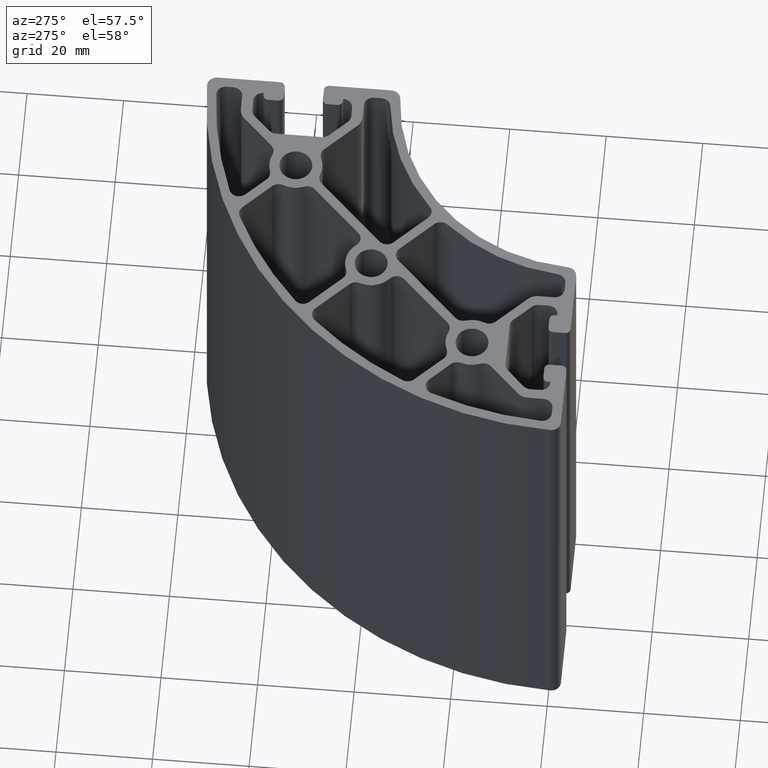
[diagram: clean part render]
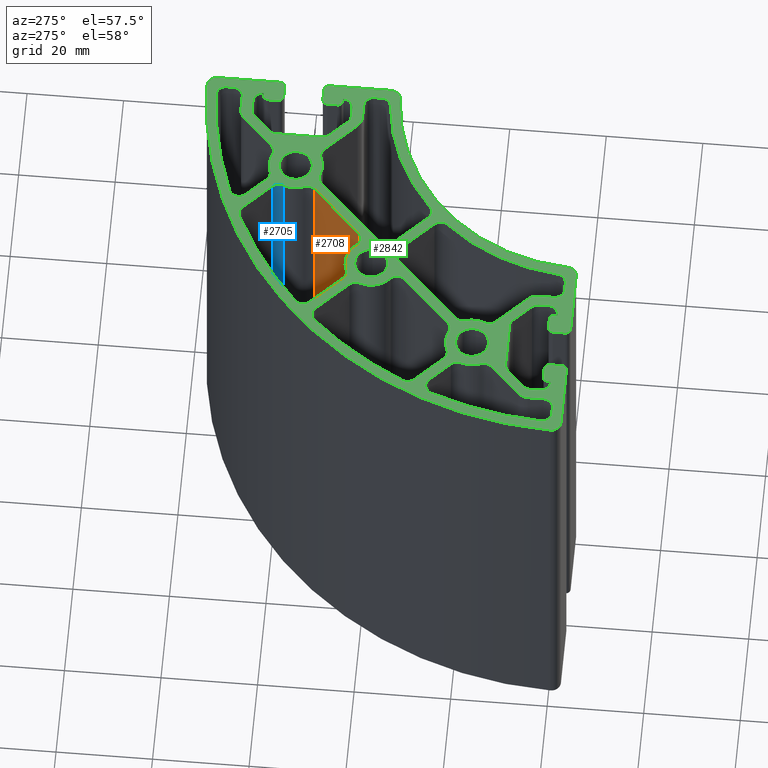
[diagram: same view with three faces highlighted in distinct colors, each labeled with its STEP entity id]
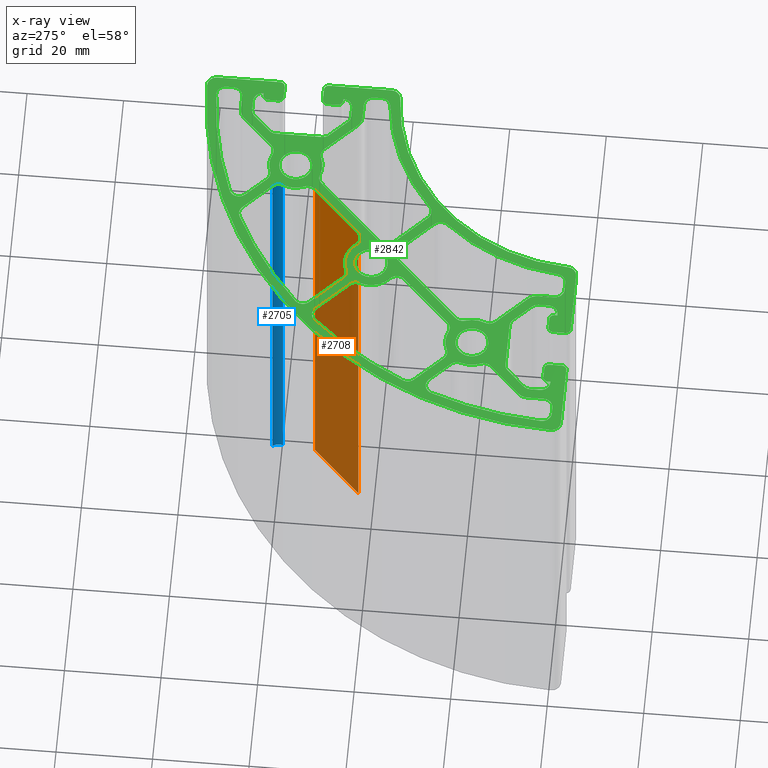
[diagram: x-ray of the same camera — body ghosted, the three highlighted faces saturated]
A machine part, auxiliary view with three faces highlighted in distinct colors.
The next image is the same camera in x-ray (body ghosted, the three faces saturated) — at least one of them is partly hidden behind the body in this view.
Their STEP definitions:

[orange] entity #2708 — the highlighted planar face has unit normal (0.7071, -0.7071, 0).
#303=FACE_OUTER_BOUND('',#446,.T.);
#446=EDGE_LOOP('',(#1832,#1833,#1834,#1835));
#612=LINE('',#4096,#860);
#613=LINE('',#4100,#861);
#614=LINE('',#4102,#862);
#615=LINE('',#4103,#863);
#860=VECTOR('',#3214,100.);
#861=VECTOR('',#3219,13.9983595758685);
#862=VECTOR('',#3220,100.);
#863=VECTOR('',#3221,13.9983595758685);
#1112=VERTEX_POINT('',#4093);
#1113=VERTEX_POINT('',#4095);
#1114=VERTEX_POINT('',#4099);
#1115=VERTEX_POINT('',#4101);
#1401=EDGE_CURVE('',#1112,#1113,#612,.T.);
#1403=EDGE_CURVE('',#1114,#1112,#613,.T.);
#1404=EDGE_CURVE('',#1114,#1115,#614,.T.);
#1405=EDGE_CURVE('',#1113,#1115,#615,.T.);
#1832=ORIENTED_EDGE('',*,*,#1403,.F.);
#1833=ORIENTED_EDGE('',*,*,#1404,.T.);
#1834=ORIENTED_EDGE('',*,*,#1405,.F.);
#1835=ORIENTED_EDGE('',*,*,#1401,.F.);
#2646=PLANE('',#2865);
#2708=ADVANCED_FACE('',(#303),#2646,.F.);
#2865=AXIS2_PLACEMENT_3D('',#4098,#3217,#3218);
#3214=DIRECTION('',(0.,0.,1.));
#3217=DIRECTION('center_axis',(0.707094728982443,-0.707118833185233,0.));
#3218=DIRECTION('ref_axis',(0.707118833185233,0.707094728982444,0.));
#3219=DIRECTION('',(0.707118833185233,0.707094728982443,0.));
#3220=DIRECTION('',(0.,0.,1.));
#3221=DIRECTION('',(-0.707118833185233,-0.707094728982443,0.));
#4093=CARTESIAN_POINT('',(16.9652756071257,13.1296641263271,0.));
#4095=CARTESIAN_POINT('',(16.9652756071257,13.1296641263271,100.));
#4096=CARTESIAN_POINT('',(16.9652756071257,13.1296641263271,0.));
#4098=CARTESIAN_POINT('Origin',(7.06677191733028,3.23149785582963,0.));
#4099=CARTESIAN_POINT('',(7.06677191733028,3.23149785582963,0.));
#4100=CARTESIAN_POINT('',(4.4647038451373,0.629518482697607,0.));
#4101=CARTESIAN_POINT('',(7.06677191733028,3.23149785582963,100.));
#4102=CARTESIAN_POINT('',(7.06677191733028,3.23149785582963,0.));
#4103=CARTESIAN_POINT('',(4.4647038451373,0.629518482697607,100.));

[blue] entity #2705 — the highlighted cylindrical surface (edge-blend (fillet) strip) has radius 2 mm, axis along (0, 0, 1).
#40=CIRCLE('',#2857,1.99999706085434);
#41=CIRCLE('',#2858,1.99999706085434);
#211=CYLINDRICAL_SURFACE('',#2856,1.99999706085434);
#300=FACE_OUTER_BOUND('',#443,.T.);
#443=EDGE_LOOP('',(#1820,#1821,#1822,#1823));
#608=LINE('',#4078,#856);
#610=LINE('',#4084,#858);
#856=VECTOR('',#3194,100.);
#858=VECTOR('',#3200,100.);
#1106=VERTEX_POINT('',#4075);
#1107=VERTEX_POINT('',#4077);
#1108=VERTEX_POINT('',#4081);
#1109=VERTEX_POINT('',#4083);
#1392=EDGE_CURVE('',#1106,#1107,#608,.T.);
#1394=EDGE_CURVE('',#1108,#1106,#40,.T.);
#1395=EDGE_CURVE('',#1108,#1109,#610,.T.);
#1396=EDGE_CURVE('',#1107,#1109,#41,.T.);
#1820=ORIENTED_EDGE('',*,*,#1394,.F.);
#1821=ORIENTED_EDGE('',*,*,#1395,.T.);
#1822=ORIENTED_EDGE('',*,*,#1396,.F.);
#1823=ORIENTED_EDGE('',*,*,#1392,.F.);
#2705=ADVANCED_FACE('',(#300),#211,.F.);
#2856=AXIS2_PLACEMENT_3D('',#4080,#3196,#3197);
#2857=AXIS2_PLACEMENT_3D('',#4082,#3198,#3199);
#2858=AXIS2_PLACEMENT_3D('',#4085,#3201,#3202);
#3194=DIRECTION('',(0.,0.,1.));
#3196=DIRECTION('center_axis',(0.,0.,1.));
#3197=DIRECTION('ref_axis',(0.917180280355902,-0.398472500087859,0.));
#3198=DIRECTION('center_axis',(0.,0.,1.));
#3199=DIRECTION('ref_axis',(0.917180280355902,-0.398472500087859,0.));
#3200=DIRECTION('',(0.,0.,1.));
#3201=DIRECTION('center_axis',(0.,0.,-1.));
#3202=DIRECTION('ref_axis',(0.917180280355902,-0.398472500087859,0.));
#4075=CARTESIAN_POINT('',(16.9644376239903,21.9334253625217,0.));
#4077=CARTESIAN_POINT('',(16.9644376239903,21.9334253625217,100.));
#4078=CARTESIAN_POINT('',(16.9644376239903,21.9334253625217,0.));
#4080=CARTESIAN_POINT('Origin',(15.5502081910947,20.5192318274785,0.));
#4081=CARTESIAN_POINT('',(17.3845660560801,19.7222879984715,0.));
#4082=CARTESIAN_POINT('Origin',(15.5502081910947,20.5192318274785,0.));
#4083=CARTESIAN_POINT('',(17.3845660560801,19.7222879984715,100.));
#4084=CARTESIAN_POINT('',(17.3845660560801,19.7222879984715,0.));
#4085=CARTESIAN_POINT('Origin',(15.5502081910947,20.5192318274785,100.));

[green] entity #2842 — the highlighted planar face has unit normal (0, 0, 1).
#25=FACE_BOUND('',#591,.T.);
#26=FACE_BOUND('',#592,.T.);
#27=FACE_BOUND('',#593,.T.);
#28=FACE_BOUND('',#594,.T.);
#29=FACE_BOUND('',#595,.T.);
#30=FACE_BOUND('',#596,.T.);
#31=FACE_BOUND('',#597,.T.);
#32=FACE_BOUND('',#598,.T.);
#33=FACE_BOUND('',#599,.T.);
#35=CIRCLE('',#2848,1.99999706085434);
#37=CIRCLE('',#2851,77.9979248202681);
#39=CIRCLE('',#2854,1.99999706085434);
#41=CIRCLE('',#2858,1.99999706085434);
#43=CIRCLE('',#2861,5.49976026185928);
#45=CIRCLE('',#2864,1.99999706085434);
#47=CIRCLE('',#2868,1.99999706085434);
#49=CIRCLE('',#2871,5.39986959533838);
#51=CIRCLE('',#2874,1.99999706085434);
#53=CIRCLE('',#2878,1.99999706085434);
#55=CIRCLE('',#2881,5.50010490906101);
#57=CIRCLE('',#2884,1.99999706085434);
#59=CIRCLE('',#2888,1.99999706085434);
#61=CIRCLE('',#2891,77.996941931329);
#63=CIRCLE('',#2894,1.99999706085434);
#65=CIRCLE('',#2898,1.99999706085434);
#67=CIRCLE('',#2901,5.39981011914576);
#69=CIRCLE('',#2904,1.99999706085434);
#71=CIRCLE('',#2908,1.99999706085434);
#73=CIRCLE('',#2912,1.99999706085434);
#75=CIRCLE('',#2915,5.50024650467033);
#77=CIRCLE('',#2918,1.99999706085434);
#79=CIRCLE('',#2922,2.99999999999977);
#81=CIRCLE('',#2926,1.99999706085434);
#83=CIRCLE('',#2930,1.99999706085434);
#85=CIRCLE('',#2933,41.9948134353848);
#87=CIRCLE('',#2936,1.99999706085434);
#89=CIRCLE('',#2940,1.99999706085434);
#91=CIRCLE('',#2944,3.00000000000006);
#93=CIRCLE('',#2948,1.99999706085434);
#95=CIRCLE('',#2951,5.50007664757411);
#97=CIRCLE('',#2954,1.99999706085434);
#99=CIRCLE('',#2958,1.99999706085434);
#101=CIRCLE('',#2962,1.99999706085434);
#103=CIRCLE('',#2965,42.0160872709634);
#105=CIRCLE('',#2968,1.99999706085434);
#107=CIRCLE('',#2972,1.99999706085434);
#109=CIRCLE('',#2976,1.99999706085434);
#111=CIRCLE('',#2979,78.0145393309975);
#113=CIRCLE('',#2982,1.99999706085434);
#115=CIRCLE('',#2986,1.99999706085434);
#117=CIRCLE('',#2989,5.50023906310128);
#119=CIRCLE('',#2992,1.99999706085434);
#121=CIRCLE('',#2996,3.00000000000006);
#123=CIRCLE('',#3000,1.99999706085434);
#125=CIRCLE('',#3003,5.50023906310128);
#127=CIRCLE('',#3006,1.99999706085434);
#129=CIRCLE('',#3010,1.99999706085434);
#131=CIRCLE('',#3013,78.0002495214312);
#133=CIRCLE('',#3016,1.99999706085434);
#135=CIRCLE('',#3020,1.99999706085434);
#137=CIRCLE('',#3024,3.00000000000006);
#139=CIRCLE('',#3027,3.4);
#141=CIRCLE('',#3030,3.4000003285942);
#143=CIRCLE('',#3033,3.4);
#145=CIRCLE('',#3036,3.39999890317344);
#146=CIRCLE('',#3038,3.4);
#149=CIRCLE('',#3042,1.99999706085434);
#151=CIRCLE('',#3045,79.9999999999985);
#153=CIRCLE('',#3048,1.99999706085434);
#155=CIRCLE('',#3052,1.04258249401677);
#157=CIRCLE('',#3056,1.04258249401677);
#159=CIRCLE('',#3060,1.04258249401677);
#161=CIRCLE('',#3065,1.99999706085434);
#163=CIRCLE('',#3069,1.99999706085434);
#165=CIRCLE('',#3073,1.99999706085434);
#167=CIRCLE('',#3077,1.99999706085434);
#169=CIRCLE('',#3081,1.99999706085434);
#171=CIRCLE('',#3085,1.99999706085434);
#173=CIRCLE('',#3090,1.04258249401677);
#175=CIRCLE('',#3094,1.04258249401677);
#177=CIRCLE('',#3098,1.04258249401677);
#179=CIRCLE('',#3102,1.99999706085434);
#181=CIRCLE('',#3105,40.);
#183=CIRCLE('',#3108,1.99999706085434);
#185=CIRCLE('',#3112,1.04258249401677);
#187=CIRCLE('',#3116,1.04258249401677);
#189=CIRCLE('',#3120,1.04258249401677);
#191=CIRCLE('',#3125,1.99999706085434);
#193=CIRCLE('',#3129,1.99999706085434);
#195=CIRCLE('',#3133,1.99999706085434);
#197=CIRCLE('',#3137,1.99999706085434);
#199=CIRCLE('',#3141,1.99999706085434);
#201=CIRCLE('',#3145,1.99999706085434);
#203=CIRCLE('',#3150,1.04258249401677);
#205=CIRCLE('',#3154,1.04258249401677);
#207=CIRCLE('',#3158,1.04258249401677);
#437=FACE_OUTER_BOUND('',#590,.T.);
#590=EDGE_LOOP('',(#2503,#2504,#2505,#2506,#2507,#2508,#2509,#2510,#2511,
#2512,#2513,#2514,#2515,#2516,#2517,#2518,#2519,#2520,#2521,#2522,#2523,
#2524,#2525,#2526,#2527,#2528,#2529,#2530,#2531,#2532,#2533,#2534,#2535,
#2536,#2537,#2538,#2539,#2540,#2541,#2542,#2543,#2544,#2545,#2546,#2547,
#2548,#2549,#2550,#2551,#2552,#2553,#2554,#2555,#2556,#2557,#2558,#2559,
#2560,#2561,#2562));
#591=EDGE_LOOP('',(#2563,#2564,#2565,#2566,#2567,#2568,#2569,#2570,#2571,
#2572,#2573,#2574));
#592=EDGE_LOOP('',(#2575,#2576,#2577,#2578,#2579,#2580,#2581,#2582,#2583,
#2584,#2585,#2586));
#593=EDGE_LOOP('',(#2587,#2588,#2589,#2590,#2591,#2592,#2593,#2594,#2595,
#2596,#2597,#2598,#2599,#2600));
#594=EDGE_LOOP('',(#2601,#2602,#2603,#2604,#2605,#2606,#2607,#2608,#2609,
#2610,#2611,#2612,#2613,#2614));
#595=EDGE_LOOP('',(#2615,#2616,#2617,#2618,#2619,#2620,#2621,#2622,#2623,
#2624,#2625,#2626));
#596=EDGE_LOOP('',(#2627,#2628,#2629,#2630,#2631,#2632,#2633,#2634,#2635,
#2636,#2637,#2638));
#597=EDGE_LOOP('',(#2639,#2640));
#598=EDGE_LOOP('',(#2641,#2642));
#599=EDGE_LOOP('',(#2643));
#602=LINE('',#4054,#850);
#609=LINE('',#4079,#857);
#615=LINE('',#4103,#863);
#620=LINE('',#4126,#868);
#627=LINE('',#4151,#875);
#633=LINE('',#4175,#881);
#638=LINE('',#4198,#886);
#643=LINE('',#4211,#891);
#649=LINE('',#4235,#897);
#653=LINE('',#4247,#901);
#657=LINE('',#4259,#905);
#662=LINE('',#4282,#910);
#667=LINE('',#4295,#915);
#671=LINE('',#4307,#919);
#677=LINE('',#4331,#925);
#681=LINE('',#4343,#929);
#686=LINE('',#4366,#934);
#691=LINE('',#4379,#939);
#697=LINE('',#4403,#945);
#703=LINE('',#4427,#951);
#706=LINE('',#4438,#954);
#713=LINE('',#4463,#961);
#719=LINE('',#4487,#967);
#723=LINE('',#4499,#971);
#733=LINE('',#4557,#981);
#737=LINE('',#4569,#985);
#741=LINE('',#4581,#989);
#745=LINE('',#4593,#993);
#748=LINE('',#4599,#996);
#752=LINE('',#4611,#1000);
#756=LINE('',#4623,#1004);
#760=LINE('',#4635,#1008);
#764=LINE('',#4647,#1012);
#768=LINE('',#4659,#1016);
#772=LINE('',#4671,#1020);
#775=LINE('',#4677,#1023);
#779=LINE('',#4689,#1027);
#783=LINE('',#4701,#1031);
#787=LINE('',#4713,#1035);
#793=LINE('',#4737,#1041);
#797=LINE('',#4749,#1045);
#801=LINE('',#4761,#1049);
#805=LINE('',#4773,#1053);
#808=LINE('',#4779,#1056);
#812=LINE('',#4791,#1060);
#816=LINE('',#4803,#1064);
#820=LINE('',#4815,#1068);
#824=LINE('',#4827,#1072);
#828=LINE('',#4839,#1076);
#832=LINE('',#4851,#1080);
#835=LINE('',#4857,#1083);
#839=LINE('',#4869,#1087);
#843=LINE('',#4881,#1091);
#847=LINE('',#4891,#1095);
#850=VECTOR('',#3168,9.11169675906204);
#857=VECTOR('',#3195,8.03652102100637);
#863=VECTOR('',#3221,13.9983595758685);
#868=VECTOR('',#3246,13.8878230244337);
#875=VECTOR('',#3273,8.03046512236666);
#881=VECTOR('',#3299,9.14181212007368);
#886=VECTOR('',#3324,9.4174775539722);
#891=VECTOR('',#3337,18.6216549067931);
#897=VECTOR('',#3363,8.98690562252804);
#901=VECTOR('',#3375,3.03449636110226);
#905=VECTOR('',#3387,1.66934355466424);
#910=VECTOR('',#3412,1.71662581633077);
#915=VECTOR('',#3425,3.25306098941856);
#919=VECTOR('',#3437,8.70744890703311);
#925=VECTOR('',#3463,18.4293683742617);
#929=VECTOR('',#3475,9.42685738673044);
#934=VECTOR('',#3500,3.26555655146678);
#939=VECTOR('',#3513,1.42333196872819);
#945=VECTOR('',#3539,5.81490857547322);
#951=VECTOR('',#3565,8.657839700418);
#954=VECTOR('',#3576,8.71018907184554);
#961=VECTOR('',#3603,5.82198722889942);
#967=VECTOR('',#3629,1.39641755711711);
#971=VECTOR('',#3641,3.23252955016074);
#981=VECTOR('',#3707,12.9591205125071);
#985=VECTOR('',#3719,2.43376612254418);
#989=VECTOR('',#3731,2.07122240835766);
#993=VECTOR('',#3743,0.500539314509227);
#996=VECTOR('',#3748,0.216006549412228);
#1000=VECTOR('',#3760,2.28286481479027);
#1004=VECTOR('',#3772,5.08577000401725);
#1008=VECTOR('',#3784,9.5574038813049);
#1012=VECTOR('',#3796,5.08908065607837);
#1016=VECTOR('',#3808,2.1080027756551);
#1020=VECTOR('',#3820,0.0202348090060711);
#1023=VECTOR('',#3825,0.526488098983098);
#1027=VECTOR('',#3837,2.08516498803353);
#1031=VECTOR('',#3849,2.43376612254419);
#1035=VECTOR('',#3861,12.8601149589288);
#1041=VECTOR('',#3887,13.0464715569881);
#1045=VECTOR('',#3899,2.51402422261473);
#1049=VECTOR('',#3911,2.08516498803354);
#1053=VECTOR('',#3923,0.515549516006923);
#1056=VECTOR('',#3928,0.20480146594212);
#1060=VECTOR('',#3940,2.01084748232868);
#1064=VECTOR('',#3952,5.08614450888738);
#1068=VECTOR('',#3964,9.54656334314209);
#1072=VECTOR('',#3976,5.08571531748007);
#1076=VECTOR('',#3988,2.0084986562549);
#1080=VECTOR('',#4000,0.274924776305803);
#1083=VECTOR('',#4005,0.512289299358328);
#1087=VECTOR('',#4017,1.89596033211075);
#1091=VECTOR('',#4029,2.51402422261472);
#1095=VECTOR('',#4041,12.8909712933489);
#1098=VERTEX_POINT('',#4051);
#1099=VERTEX_POINT('',#4053);
#1101=VERTEX_POINT('',#4059);
#1103=VERTEX_POINT('',#4065);
#1105=VERTEX_POINT('',#4071);
#1107=VERTEX_POINT('',#4077);
#1109=VERTEX_POINT('',#4083);
#1111=VERTEX_POINT('',#4089);
#1113=VERTEX_POINT('',#4095);
#1115=VERTEX_POINT('',#4101);
#1117=VERTEX_POINT('',#4107);
#1119=VERTEX_POINT('',#4113);
#1122=VERTEX_POINT('',#4123);
#1123=VERTEX_POINT('',#4125);
#1125=VERTEX_POINT('',#4131);
#1127=VERTEX_POINT('',#4137);
#1129=VERTEX_POINT('',#4143);
#1131=VERTEX_POINT('',#4149);
#1133=VERTEX_POINT('',#4155);
#1135=VERTEX_POINT('',#4161);
#1137=VERTEX_POINT('',#4167);
#1139=VERTEX_POINT('',#4173);
#1141=VERTEX_POINT('',#4179);
#1143=VERTEX_POINT('',#4185);
#1146=VERTEX_POINT('',#4195);
#1147=VERTEX_POINT('',#4197);
#1149=VERTEX_POINT('',#4203);
#1151=VERTEX_POINT('',#4209);
#1153=VERTEX_POINT('',#4215);
#1155=VERTEX_POINT('',#4221);
#1157=VERTEX_POINT('',#4227);
#1159=VERTEX_POINT('',#4233);
#1161=VERTEX_POINT('',#4239);
#1163=VERTEX_POINT('',#4245);
#1165=VERTEX_POINT('',#4251);
#1167=VERTEX_POINT('',#4257);
#1169=VERTEX_POINT('',#4263);
#1171=VERTEX_POINT('',#4269);
#1174=VERTEX_POINT('',#4279);
#1175=VERTEX_POINT('',#4281);
#1177=VERTEX_POINT('',#4287);
#1179=VERTEX_POINT('',#4293);
#1181=VERTEX_POINT('',#4299);
#1183=VERTEX_POINT('',#4305);
#1185=VERTEX_POINT('',#4311);
#1187=VERTEX_POINT('',#4317);
#1189=VERTEX_POINT('',#4323);
#1191=VERTEX_POINT('',#4329);
#1193=VERTEX_POINT('',#4335);
#1195=VERTEX_POINT('',#4341);
#1197=VERTEX_POINT('',#4347);
#1199=VERTEX_POINT('',#4353);
#1202=VERTEX_POINT('',#4363);
#1203=VERTEX_POINT('',#4365);
#1205=VERTEX_POINT('',#4371);
#1207=VERTEX_POINT('',#4377);
#1209=VERTEX_POINT('',#4383);
#1211=VERTEX_POINT('',#4389);
#1213=VERTEX_POINT('',#4395);
#1215=VERTEX_POINT('',#4401);
#1217=VERTEX_POINT('',#4407);
#1219=VERTEX_POINT('',#4413);
#1221=VERTEX_POINT('',#4419);
#1223=VERTEX_POINT('',#4425);
#1226=VERTEX_POINT('',#4435);
#1227=VERTEX_POINT('',#4437);
#1229=VERTEX_POINT('',#4443);
#1231=VERTEX_POINT('',#4449);
#1233=VERTEX_POINT('',#4455);
#1235=VERTEX_POINT('',#4461);
#1237=VERTEX_POINT('',#4467);
#1239=VERTEX_POINT('',#4473);
#1241=VERTEX_POINT('',#4479);
#1243=VERTEX_POINT('',#4485);
#1245=VERTEX_POINT('',#4491);
#1247=VERTEX_POINT('',#4497);
#1250=VERTEX_POINT('',#4507);
#1251=VERTEX_POINT('',#4509);
#1254=VERTEX_POINT('',#4519);
#1255=VERTEX_POINT('',#4521);
#1256=VERTEX_POINT('',#4528);
#1260=VERTEX_POINT('',#4536);
#1261=VERTEX_POINT('',#4538);
#1263=VERTEX_POINT('',#4544);
#1265=VERTEX_POINT('',#4550);
#1267=VERTEX_POINT('',#4556);
#1269=VERTEX_POINT('',#4562);
#1271=VERTEX_POINT('',#4568);
#1273=VERTEX_POINT('',#4574);
#1275=VERTEX_POINT('',#4580);
#1277=VERTEX_POINT('',#4586);
#1279=VERTEX_POINT('',#4592);
#1281=VERTEX_POINT('',#4598);
#1283=VERTEX_POINT('',#4604);
#1285=VERTEX_POINT('',#4610);
#1287=VERTEX_POINT('',#4616);
#1289=VERTEX_POINT('',#4622);
#1291=VERTEX_POINT('',#4628);
#1293=VERTEX_POINT('',#4634);
#1295=VERTEX_POINT('',#4640);
#1297=VERTEX_POINT('',#4646);
#1299=VERTEX_POINT('',#4652);
#1301=VERTEX_POINT('',#4658);
#1303=VERTEX_POINT('',#4664);
#1305=VERTEX_POINT('',#4670);
#1307=VERTEX_POINT('',#4676);
#1309=VERTEX_POINT('',#4682);
#1311=VERTEX_POINT('',#4688);
#1313=VERTEX_POINT('',#4694);
#1315=VERTEX_POINT('',#4700);
#1317=VERTEX_POINT('',#4706);
#1319=VERTEX_POINT('',#4712);
#1321=VERTEX_POINT('',#4718);
#1323=VERTEX_POINT('',#4724);
#1325=VERTEX_POINT('',#4730);
#1327=VERTEX_POINT('',#4736);
#1329=VERTEX_POINT('',#4742);
#1331=VERTEX_POINT('',#4748);
#1333=VERTEX_POINT('',#4754);
#1335=VERTEX_POINT('',#4760);
#1337=VERTEX_POINT('',#4766);
#1339=VERTEX_POINT('',#4772);
#1341=VERTEX_POINT('',#4778);
#1343=VERTEX_POINT('',#4784);
#1345=VERTEX_POINT('',#4790);
#1347=VERTEX_POINT('',#4796);
#1349=VERTEX_POINT('',#4802);
#1351=VERTEX_POINT('',#4808);
#1353=VERTEX_POINT('',#4814);
#1355=VERTEX_POINT('',#4820);
#1357=VERTEX_POINT('',#4826);
#1359=VERTEX_POINT('',#4832);
#1361=VERTEX_POINT('',#4838);
#1363=VERTEX_POINT('',#4844);
#1365=VERTEX_POINT('',#4850);
#1367=VERTEX_POINT('',#4856);
#1369=VERTEX_POINT('',#4862);
#1371=VERTEX_POINT('',#4868);
#1373=VERTEX_POINT('',#4874);
#1375=VERTEX_POINT('',#4880);
#1377=VERTEX_POINT('',#4886);
#1380=EDGE_CURVE('',#1099,#1098,#602,.T.);
#1384=EDGE_CURVE('',#1098,#1101,#35,.T.);
#1387=EDGE_CURVE('',#1101,#1103,#37,.T.);
#1390=EDGE_CURVE('',#1103,#1105,#39,.T.);
#1393=EDGE_CURVE('',#1105,#1107,#609,.T.);
#1396=EDGE_CURVE('',#1107,#1109,#41,.T.);
#1399=EDGE_CURVE('',#1109,#1111,#43,.T.);
#1402=EDGE_CURVE('',#1111,#1113,#45,.T.);
#1405=EDGE_CURVE('',#1113,#1115,#615,.T.);
#1408=EDGE_CURVE('',#1115,#1117,#47,.T.);
#1411=EDGE_CURVE('',#1117,#1119,#49,.T.);
#1413=EDGE_CURVE('',#1119,#1099,#51,.T.);
#1416=EDGE_CURVE('',#1123,#1122,#620,.T.);
#1420=EDGE_CURVE('',#1122,#1125,#53,.T.);
#1423=EDGE_CURVE('',#1125,#1127,#55,.T.);
#1426=EDGE_CURVE('',#1127,#1129,#57,.T.);
#1429=EDGE_CURVE('',#1129,#1131,#627,.T.);
#1432=EDGE_CURVE('',#1131,#1133,#59,.T.);
#1435=EDGE_CURVE('',#1133,#1135,#61,.T.);
#1438=EDGE_CURVE('',#1135,#1137,#63,.T.);
#1441=EDGE_CURVE('',#1137,#1139,#633,.T.);
#1444=EDGE_CURVE('',#1139,#1141,#65,.T.);
#1447=EDGE_CURVE('',#1141,#1143,#67,.T.);
#1449=EDGE_CURVE('',#1143,#1123,#69,.T.);
#1452=EDGE_CURVE('',#1147,#1146,#638,.T.);
#1456=EDGE_CURVE('',#1146,#1149,#71,.T.);
#1459=EDGE_CURVE('',#1149,#1151,#643,.T.);
#1462=EDGE_CURVE('',#1151,#1153,#73,.T.);
#1465=EDGE_CURVE('',#1153,#1155,#75,.T.);
#1468=EDGE_CURVE('',#1155,#1157,#77,.T.);
#1471=EDGE_CURVE('',#1157,#1159,#649,.T.);
#1474=EDGE_CURVE('',#1159,#1161,#79,.T.);
#1477=EDGE_CURVE('',#1161,#1163,#653,.T.);
#1480=EDGE_CURVE('',#1163,#1165,#81,.T.);
#1483=EDGE_CURVE('',#1165,#1167,#657,.T.);
#1486=EDGE_CURVE('',#1167,#1169,#83,.T.);
#1489=EDGE_CURVE('',#1169,#1171,#85,.T.);
#1491=EDGE_CURVE('',#1171,#1147,#87,.T.);
#1494=EDGE_CURVE('',#1175,#1174,#662,.T.);
#1498=EDGE_CURVE('',#1174,#1177,#89,.T.);
#1501=EDGE_CURVE('',#1177,#1179,#667,.T.);
#1504=EDGE_CURVE('',#1179,#1181,#91,.T.);
#1507=EDGE_CURVE('',#1181,#1183,#671,.T.);
#1510=EDGE_CURVE('',#1183,#1185,#93,.T.);
#1513=EDGE_CURVE('',#1185,#1187,#95,.T.);
#1516=EDGE_CURVE('',#1187,#1189,#97,.T.);
#1519=EDGE_CURVE('',#1189,#1191,#677,.T.);
#1522=EDGE_CURVE('',#1191,#1193,#99,.T.);
#1525=EDGE_CURVE('',#1193,#1195,#681,.T.);
#1528=EDGE_CURVE('',#1195,#1197,#101,.T.);
#1531=EDGE_CURVE('',#1197,#1199,#103,.T.);
#1533=EDGE_CURVE('',#1199,#1175,#105,.T.);
#1536=EDGE_CURVE('',#1203,#1202,#686,.T.);
#1540=EDGE_CURVE('',#1202,#1205,#107,.T.);
#1543=EDGE_CURVE('',#1205,#1207,#691,.T.);
#1546=EDGE_CURVE('',#1207,#1209,#109,.T.);
#1549=EDGE_CURVE('',#1209,#1211,#111,.T.);
#1552=EDGE_CURVE('',#1211,#1213,#113,.T.);
#1555=EDGE_CURVE('',#1213,#1215,#697,.T.);
#1558=EDGE_CURVE('',#1215,#1217,#115,.T.);
#1561=EDGE_CURVE('',#1217,#1219,#117,.T.);
#1564=EDGE_CURVE('',#1219,#1221,#119,.T.);
#1567=EDGE_CURVE('',#1221,#1223,#703,.T.);
#1569=EDGE_CURVE('',#1223,#1203,#121,.T.);
#1572=EDGE_CURVE('',#1227,#1226,#706,.T.);
#1576=EDGE_CURVE('',#1226,#1229,#123,.T.);
#1579=EDGE_CURVE('',#1229,#1231,#125,.T.);
#1582=EDGE_CURVE('',#1231,#1233,#127,.T.);
#1585=EDGE_CURVE('',#1233,#1235,#713,.T.);
#1588=EDGE_CURVE('',#1235,#1237,#129,.T.);
#1591=EDGE_CURVE('',#1237,#1239,#131,.T.);
#1594=EDGE_CURVE('',#1239,#1241,#133,.T.);
#1597=EDGE_CURVE('',#1241,#1243,#719,.T.);
#1600=EDGE_CURVE('',#1243,#1245,#135,.T.);
#1603=EDGE_CURVE('',#1245,#1247,#723,.T.);
#1605=EDGE_CURVE('',#1247,#1227,#137,.T.);
#1608=EDGE_CURVE('',#1251,#1250,#139,.T.);
#1611=EDGE_CURVE('',#1250,#1251,#141,.T.);
#1614=EDGE_CURVE('',#1255,#1254,#143,.T.);
#1617=EDGE_CURVE('',#1254,#1255,#145,.T.);
#1618=EDGE_CURVE('',#1256,#1256,#146,.T.);
#1622=EDGE_CURVE('',#1261,#1260,#149,.T.);
#1625=EDGE_CURVE('',#1263,#1261,#151,.T.);
#1628=EDGE_CURVE('',#1265,#1263,#153,.T.);
#1631=EDGE_CURVE('',#1267,#1265,#733,.T.);
#1634=EDGE_CURVE('',#1269,#1267,#155,.T.);
#1637=EDGE_CURVE('',#1271,#1269,#737,.T.);
#1640=EDGE_CURVE('',#1273,#1271,#157,.T.);
#1643=EDGE_CURVE('',#1275,#1273,#741,.T.);
#1646=EDGE_CURVE('',#1277,#1275,#159,.T.);
#1649=EDGE_CURVE('',#1279,#1277,#745,.T.);
#1652=EDGE_CURVE('',#1281,#1279,#748,.T.);
#1655=EDGE_CURVE('',#1283,#1281,#161,.T.);
#1658=EDGE_CURVE('',#1285,#1283,#752,.T.);
#1661=EDGE_CURVE('',#1287,#1285,#163,.T.);
#1664=EDGE_CURVE('',#1289,#1287,#756,.T.);
#1667=EDGE_CURVE('',#1291,#1289,#165,.T.);
#1670=EDGE_CURVE('',#1293,#1291,#760,.T.);
#1673=EDGE_CURVE('',#1295,#1293,#167,.T.);
#1676=EDGE_CURVE('',#1297,#1295,#764,.T.);
#1679=EDGE_CURVE('',#1299,#1297,#169,.T.);
#1682=EDGE_CURVE('',#1301,#1299,#768,.T.);
#1685=EDGE_CURVE('',#1303,#1301,#171,.T.);
#1688=EDGE_CURVE('',#1305,#1303,#772,.T.);
#1691=EDGE_CURVE('',#1307,#1305,#775,.T.);
#1694=EDGE_CURVE('',#1309,#1307,#173,.T.);
#1697=EDGE_CURVE('',#1311,#1309,#779,.T.);
#1700=EDGE_CURVE('',#1313,#1311,#175,.T.);
#1703=EDGE_CURVE('',#1315,#1313,#783,.T.);
#1706=EDGE_CURVE('',#1317,#1315,#177,.T.);
#1709=EDGE_CURVE('',#1319,#1317,#787,.T.);
#1712=EDGE_CURVE('',#1321,#1319,#179,.T.);
#1715=EDGE_CURVE('',#1323,#1321,#181,.T.);
#1718=EDGE_CURVE('',#1325,#1323,#183,.T.);
#1721=EDGE_CURVE('',#1327,#1325,#793,.T.);
#1724=EDGE_CURVE('',#1329,#1327,#185,.T.);
#1727=EDGE_CURVE('',#1331,#1329,#797,.T.);
#1730=EDGE_CURVE('',#1333,#1331,#187,.T.);
#1733=EDGE_CURVE('',#1335,#1333,#801,.T.);
#1736=EDGE_CURVE('',#1337,#1335,#189,.T.);
#1739=EDGE_CURVE('',#1339,#1337,#805,.T.);
#1742=EDGE_CURVE('',#1341,#1339,#808,.T.);
#1745=EDGE_CURVE('',#1343,#1341,#191,.T.);
#1748=EDGE_CURVE('',#1345,#1343,#812,.T.);
#1751=EDGE_CURVE('',#1347,#1345,#193,.T.);
#1754=EDGE_CURVE('',#1349,#1347,#816,.T.);
#1757=EDGE_CURVE('',#1351,#1349,#195,.T.);
#1760=EDGE_CURVE('',#1353,#1351,#820,.T.);
#1763=EDGE_CURVE('',#1355,#1353,#197,.T.);
#1766=EDGE_CURVE('',#1357,#1355,#824,.T.);
#1769=EDGE_CURVE('',#1359,#1357,#199,.T.);
#1772=EDGE_CURVE('',#1361,#1359,#828,.T.);
#1775=EDGE_CURVE('',#1363,#1361,#201,.T.);
#1778=EDGE_CURVE('',#1365,#1363,#832,.T.);
#1781=EDGE_CURVE('',#1367,#1365,#835,.T.);
#1784=EDGE_CURVE('',#1369,#1367,#203,.T.);
#1787=EDGE_CURVE('',#1371,#1369,#839,.T.);
#1790=EDGE_CURVE('',#1373,#1371,#205,.T.);
#1793=EDGE_CURVE('',#1375,#1373,#843,.T.);
#1796=EDGE_CURVE('',#1377,#1375,#207,.T.);
#1799=EDGE_CURVE('',#1260,#1377,#847,.T.);
#2503=ORIENTED_EDGE('',*,*,#1799,.T.);
#2504=ORIENTED_EDGE('',*,*,#1796,.T.);
#2505=ORIENTED_EDGE('',*,*,#1793,.T.);
#2506=ORIENTED_EDGE('',*,*,#1790,.T.);
#2507=ORIENTED_EDGE('',*,*,#1787,.T.);
#2508=ORIENTED_EDGE('',*,*,#1784,.T.);
#2509=ORIENTED_EDGE('',*,*,#1781,.T.);
#2510=ORIENTED_EDGE('',*,*,#1778,.T.);
#2511=ORIENTED_EDGE('',*,*,#1775,.T.);
#2512=ORIENTED_EDGE('',*,*,#1772,.T.);
#2513=ORIENTED_EDGE('',*,*,#1769,.T.);
#2514=ORIENTED_EDGE('',*,*,#1766,.T.);
#2515=ORIENTED_EDGE('',*,*,#1763,.T.);
#2516=ORIENTED_EDGE('',*,*,#1760,.T.);
#2517=ORIENTED_EDGE('',*,*,#1757,.T.);
#2518=ORIENTED_EDGE('',*,*,#1754,.T.);
#2519=ORIENTED_EDGE('',*,*,#1751,.T.);
#2520=ORIENTED_EDGE('',*,*,#1748,.T.);
#2521=ORIENTED_EDGE('',*,*,#1745,.T.);
#2522=ORIENTED_EDGE('',*,*,#1742,.T.);
#2523=ORIENTED_EDGE('',*,*,#1739,.T.);
#2524=ORIENTED_EDGE('',*,*,#1736,.T.);
#2525=ORIENTED_EDGE('',*,*,#1733,.T.);
#2526=ORIENTED_EDGE('',*,*,#1730,.T.);
#2527=ORIENTED_EDGE('',*,*,#1727,.T.);
#2528=ORIENTED_EDGE('',*,*,#1724,.T.);
#2529=ORIENTED_EDGE('',*,*,#1721,.T.);
#2530=ORIENTED_EDGE('',*,*,#1718,.T.);
#2531=ORIENTED_EDGE('',*,*,#1715,.T.);
#2532=ORIENTED_EDGE('',*,*,#1712,.T.);
#2533=ORIENTED_EDGE('',*,*,#1709,.T.);
#2534=ORIENTED_EDGE('',*,*,#1706,.T.);
#2535=ORIENTED_EDGE('',*,*,#1703,.T.);
#2536=ORIENTED_EDGE('',*,*,#1700,.T.);
#2537=ORIENTED_EDGE('',*,*,#1697,.T.);
#2538=ORIENTED_EDGE('',*,*,#1694,.T.);
#2539=ORIENTED_EDGE('',*,*,#1691,.T.);
#2540=ORIENTED_EDGE('',*,*,#1688,.T.);
#2541=ORIENTED_EDGE('',*,*,#1685,.T.);
#2542=ORIENTED_EDGE('',*,*,#1682,.T.);
#2543=ORIENTED_EDGE('',*,*,#1679,.T.);
#2544=ORIENTED_EDGE('',*,*,#1676,.T.);
#2545=ORIENTED_EDGE('',*,*,#1673,.T.);
#2546=ORIENTED_EDGE('',*,*,#1670,.T.);
#2547=ORIENTED_EDGE('',*,*,#1667,.T.);
#2548=ORIENTED_EDGE('',*,*,#1664,.T.);
#2549=ORIENTED_EDGE('',*,*,#1661,.T.);
#2550=ORIENTED_EDGE('',*,*,#1658,.T.);
#2551=ORIENTED_EDGE('',*,*,#1655,.T.);
#2552=ORIENTED_EDGE('',*,*,#1652,.T.);
#2553=ORIENTED_EDGE('',*,*,#1649,.T.);
#2554=ORIENTED_EDGE('',*,*,#1646,.T.);
#2555=ORIENTED_EDGE('',*,*,#1643,.T.);
#2556=ORIENTED_EDGE('',*,*,#1640,.T.);
#2557=ORIENTED_EDGE('',*,*,#1637,.T.);
#2558=ORIENTED_EDGE('',*,*,#1634,.T.);
#2559=ORIENTED_EDGE('',*,*,#1631,.T.);
#2560=ORIENTED_EDGE('',*,*,#1628,.T.);
#2561=ORIENTED_EDGE('',*,*,#1625,.T.);
#2562=ORIENTED_EDGE('',*,*,#1622,.T.);
#2563=ORIENTED_EDGE('',*,*,#1380,.T.);
#2564=ORIENTED_EDGE('',*,*,#1384,.T.);
#2565=ORIENTED_EDGE('',*,*,#1387,.T.);
#2566=ORIENTED_EDGE('',*,*,#1390,.T.);
#2567=ORIENTED_EDGE('',*,*,#1393,.T.);
#2568=ORIENTED_EDGE('',*,*,#1396,.T.);
#2569=ORIENTED_EDGE('',*,*,#1399,.T.);
#2570=ORIENTED_EDGE('',*,*,#1402,.T.);
#2571=ORIENTED_EDGE('',*,*,#1405,.T.);
#2572=ORIENTED_EDGE('',*,*,#1408,.T.);
#2573=ORIENTED_EDGE('',*,*,#1411,.T.);
#2574=ORIENTED_EDGE('',*,*,#1413,.T.);
#2575=ORIENTED_EDGE('',*,*,#1416,.T.);
#2576=ORIENTED_EDGE('',*,*,#1420,.T.);
#2577=ORIENTED_EDGE('',*,*,#1423,.T.);
#2578=ORIENTED_EDGE('',*,*,#1426,.T.);
#2579=ORIENTED_EDGE('',*,*,#1429,.T.);
#2580=ORIENTED_EDGE('',*,*,#1432,.T.);
#2581=ORIENTED_EDGE('',*,*,#1435,.T.);
#2582=ORIENTED_EDGE('',*,*,#1438,.T.);
#2583=ORIENTED_EDGE('',*,*,#1441,.T.);
#2584=ORIENTED_EDGE('',*,*,#1444,.T.);
#2585=ORIENTED_EDGE('',*,*,#1447,.T.);
#2586=ORIENTED_EDGE('',*,*,#1449,.T.);
#2587=ORIENTED_EDGE('',*,*,#1452,.T.);
#2588=ORIENTED_EDGE('',*,*,#1456,.T.);
#2589=ORIENTED_EDGE('',*,*,#1459,.T.);
#2590=ORIENTED_EDGE('',*,*,#1462,.T.);
#2591=ORIENTED_EDGE('',*,*,#1465,.T.);
#2592=ORIENTED_EDGE('',*,*,#1468,.T.);
#2593=ORIENTED_EDGE('',*,*,#1471,.T.);
#2594=ORIENTED_EDGE('',*,*,#1474,.T.);
#2595=ORIENTED_EDGE('',*,*,#1477,.T.);
#2596=ORIENTED_EDGE('',*,*,#1480,.T.);
#2597=ORIENTED_EDGE('',*,*,#1483,.T.);
#2598=ORIENTED_EDGE('',*,*,#1486,.T.);
#2599=ORIENTED_EDGE('',*,*,#1489,.T.);
#2600=ORIENTED_EDGE('',*,*,#1491,.T.);
#2601=ORIENTED_EDGE('',*,*,#1494,.T.);
#2602=ORIENTED_EDGE('',*,*,#1498,.T.);
#2603=ORIENTED_EDGE('',*,*,#1501,.T.);
#2604=ORIENTED_EDGE('',*,*,#1504,.T.);
#2605=ORIENTED_EDGE('',*,*,#1507,.T.);
#2606=ORIENTED_EDGE('',*,*,#1510,.T.);
#2607=ORIENTED_EDGE('',*,*,#1513,.T.);
#2608=ORIENTED_EDGE('',*,*,#1516,.T.);
#2609=ORIENTED_EDGE('',*,*,#1519,.T.);
#2610=ORIENTED_EDGE('',*,*,#1522,.T.);
#2611=ORIENTED_EDGE('',*,*,#1525,.T.);
#2612=ORIENTED_EDGE('',*,*,#1528,.T.);
#2613=ORIENTED_EDGE('',*,*,#1531,.T.);
#2614=ORIENTED_EDGE('',*,*,#1533,.T.);
#2615=ORIENTED_EDGE('',*,*,#1536,.T.);
#2616=ORIENTED_EDGE('',*,*,#1540,.T.);
#2617=ORIENTED_EDGE('',*,*,#1543,.T.);
#2618=ORIENTED_EDGE('',*,*,#1546,.T.);
#2619=ORIENTED_EDGE('',*,*,#1549,.T.);
#2620=ORIENTED_EDGE('',*,*,#1552,.T.);
#2621=ORIENTED_EDGE('',*,*,#1555,.T.);
#2622=ORIENTED_EDGE('',*,*,#1558,.T.);
#2623=ORIENTED_EDGE('',*,*,#1561,.T.);
#2624=ORIENTED_EDGE('',*,*,#1564,.T.);
#2625=ORIENTED_EDGE('',*,*,#1567,.T.);
#2626=ORIENTED_EDGE('',*,*,#1569,.T.);
#2627=ORIENTED_EDGE('',*,*,#1572,.T.);
#2628=ORIENTED_EDGE('',*,*,#1576,.T.);
#2629=ORIENTED_EDGE('',*,*,#1579,.T.);
#2630=ORIENTED_EDGE('',*,*,#1582,.T.);
#2631=ORIENTED_EDGE('',*,*,#1585,.T.);
#2632=ORIENTED_EDGE('',*,*,#1588,.T.);
#2633=ORIENTED_EDGE('',*,*,#1591,.T.);
#2634=ORIENTED_EDGE('',*,*,#1594,.T.);
#2635=ORIENTED_EDGE('',*,*,#1597,.T.);
#2636=ORIENTED_EDGE('',*,*,#1600,.T.);
#2637=ORIENTED_EDGE('',*,*,#1603,.T.);
#2638=ORIENTED_EDGE('',*,*,#1605,.T.);
#2639=ORIENTED_EDGE('',*,*,#1608,.T.);
#2640=ORIENTED_EDGE('',*,*,#1611,.T.);
#2641=ORIENTED_EDGE('',*,*,#1614,.T.);
#2642=ORIENTED_EDGE('',*,*,#1617,.T.);
#2643=ORIENTED_EDGE('',*,*,#1618,.T.);
#2699=PLANE('',#3161);
#2842=ADVANCED_FACE('',(#437,#25,#26,#27,#28,#29,#30,#31,#32,#33),#2699,
 .T.);
#2848=AXIS2_PLACEMENT_3D('',#4061,#3175,#3176);
#2851=AXIS2_PLACEMENT_3D('',#4067,#3182,#3183);
#2854=AXIS2_PLACEMENT_3D('',#4073,#3189,#3190);
#2858=AXIS2_PLACEMENT_3D('',#4085,#3201,#3202);
#2861=AXIS2_PLACEMENT_3D('',#4091,#3208,#3209);
#2864=AXIS2_PLACEMENT_3D('',#4097,#3215,#3216);
#2868=AXIS2_PLACEMENT_3D('',#4109,#3227,#3228);
#2871=AXIS2_PLACEMENT_3D('',#4115,#3234,#3235);
#2874=AXIS2_PLACEMENT_3D('',#4118,#3240,#3241);
#2878=AXIS2_PLACEMENT_3D('',#4133,#3253,#3254);
#2881=AXIS2_PLACEMENT_3D('',#4139,#3260,#3261);
#2884=AXIS2_PLACEMENT_3D('',#4145,#3267,#3268);
#2888=AXIS2_PLACEMENT_3D('',#4157,#3279,#3280);
#2891=AXIS2_PLACEMENT_3D('',#4163,#3286,#3287);
#2894=AXIS2_PLACEMENT_3D('',#4169,#3293,#3294);
#2898=AXIS2_PLACEMENT_3D('',#4181,#3305,#3306);
#2901=AXIS2_PLACEMENT_3D('',#4187,#3312,#3313);
#2904=AXIS2_PLACEMENT_3D('',#4190,#3318,#3319);
#2908=AXIS2_PLACEMENT_3D('',#4205,#3331,#3332);
#2912=AXIS2_PLACEMENT_3D('',#4217,#3343,#3344);
#2915=AXIS2_PLACEMENT_3D('',#4223,#3350,#3351);
#2918=AXIS2_PLACEMENT_3D('',#4229,#3357,#3358);
#2922=AXIS2_PLACEMENT_3D('',#4241,#3369,#3370);
#2926=AXIS2_PLACEMENT_3D('',#4253,#3381,#3382);
#2930=AXIS2_PLACEMENT_3D('',#4265,#3393,#3394);
#2933=AXIS2_PLACEMENT_3D('',#4271,#3400,#3401);
#2936=AXIS2_PLACEMENT_3D('',#4274,#3406,#3407);
#2940=AXIS2_PLACEMENT_3D('',#4289,#3419,#3420);
#2944=AXIS2_PLACEMENT_3D('',#4301,#3431,#3432);
#2948=AXIS2_PLACEMENT_3D('',#4313,#3443,#3444);
#2951=AXIS2_PLACEMENT_3D('',#4319,#3450,#3451);
#2954=AXIS2_PLACEMENT_3D('',#4325,#3457,#3458);
#2958=AXIS2_PLACEMENT_3D('',#4337,#3469,#3470);
#2962=AXIS2_PLACEMENT_3D('',#4349,#3481,#3482);
#2965=AXIS2_PLACEMENT_3D('',#4355,#3488,#3489);
#2968=AXIS2_PLACEMENT_3D('',#4358,#3494,#3495);
#2972=AXIS2_PLACEMENT_3D('',#4373,#3507,#3508);
#2976=AXIS2_PLACEMENT_3D('',#4385,#3519,#3520);
#2979=AXIS2_PLACEMENT_3D('',#4391,#3526,#3527);
#2982=AXIS2_PLACEMENT_3D('',#4397,#3533,#3534);
#2986=AXIS2_PLACEMENT_3D('',#4409,#3545,#3546);
#2989=AXIS2_PLACEMENT_3D('',#4415,#3552,#3553);
#2992=AXIS2_PLACEMENT_3D('',#4421,#3559,#3560);
#2996=AXIS2_PLACEMENT_3D('',#4430,#3570,#3571);
#3000=AXIS2_PLACEMENT_3D('',#4445,#3583,#3584);
#3003=AXIS2_PLACEMENT_3D('',#4451,#3590,#3591);
#3006=AXIS2_PLACEMENT_3D('',#4457,#3597,#3598);
#3010=AXIS2_PLACEMENT_3D('',#4469,#3609,#3610);
#3013=AXIS2_PLACEMENT_3D('',#4475,#3616,#3617);
#3016=AXIS2_PLACEMENT_3D('',#4481,#3623,#3624);
#3020=AXIS2_PLACEMENT_3D('',#4493,#3635,#3636);
#3024=AXIS2_PLACEMENT_3D('',#4502,#3646,#3647);
#3027=AXIS2_PLACEMENT_3D('',#4510,#3653,#3654);
#3030=AXIS2_PLACEMENT_3D('',#4514,#3660,#3661);
#3033=AXIS2_PLACEMENT_3D('',#4522,#3667,#3668);
#3036=AXIS2_PLACEMENT_3D('',#4526,#3674,#3675);
#3038=AXIS2_PLACEMENT_3D('',#4529,#3678,#3679);
#3042=AXIS2_PLACEMENT_3D('',#4539,#3687,#3688);
#3045=AXIS2_PLACEMENT_3D('',#4545,#3694,#3695);
#3048=AXIS2_PLACEMENT_3D('',#4551,#3701,#3702);
#3052=AXIS2_PLACEMENT_3D('',#4563,#3713,#3714);
#3056=AXIS2_PLACEMENT_3D('',#4575,#3725,#3726);
#3060=AXIS2_PLACEMENT_3D('',#4587,#3737,#3738);
#3065=AXIS2_PLACEMENT_3D('',#4605,#3754,#3755);
#3069=AXIS2_PLACEMENT_3D('',#4617,#3766,#3767);
#3073=AXIS2_PLACEMENT_3D('',#4629,#3778,#3779);
#3077=AXIS2_PLACEMENT_3D('',#4641,#3790,#3791);
#3081=AXIS2_PLACEMENT_3D('',#4653,#3802,#3803);
#3085=AXIS2_PLACEMENT_3D('',#4665,#3814,#3815);
#3090=AXIS2_PLACEMENT_3D('',#4683,#3831,#3832);
#3094=AXIS2_PLACEMENT_3D('',#4695,#3843,#3844);
#3098=AXIS2_PLACEMENT_3D('',#4707,#3855,#3856);
#3102=AXIS2_PLACEMENT_3D('',#4719,#3867,#3868);
#3105=AXIS2_PLACEMENT_3D('',#4725,#3874,#3875);
#3108=AXIS2_PLACEMENT_3D('',#4731,#3881,#3882);
#3112=AXIS2_PLACEMENT_3D('',#4743,#3893,#3894);
#3116=AXIS2_PLACEMENT_3D('',#4755,#3905,#3906);
#3120=AXIS2_PLACEMENT_3D('',#4767,#3917,#3918);
#3125=AXIS2_PLACEMENT_3D('',#4785,#3934,#3935);
#3129=AXIS2_PLACEMENT_3D('',#4797,#3946,#3947);
#3133=AXIS2_PLACEMENT_3D('',#4809,#3958,#3959);
#3137=AXIS2_PLACEMENT_3D('',#4821,#3970,#3971);
#3141=AXIS2_PLACEMENT_3D('',#4833,#3982,#3983);
#3145=AXIS2_PLACEMENT_3D('',#4845,#3994,#3995);
#3150=AXIS2_PLACEMENT_3D('',#4863,#4011,#4012);
#3154=AXIS2_PLACEMENT_3D('',#4875,#4023,#4024);
#3158=AXIS2_PLACEMENT_3D('',#4887,#4035,#4036);
#3161=AXIS2_PLACEMENT_3D('',#4893,#4044,#4045);
#3168=DIRECTION('',(-0.707094728775918,0.707118833391751,0.));
#3175=DIRECTION('center_axis',(0.,0.,-1.));
#3176=DIRECTION('ref_axis',(-0.67779573833496,0.735250254739818,0.));
#3182=DIRECTION('center_axis',(0.,0.,-1.));
#3183=DIRECTION('ref_axis',(-0.428526300368443,0.903529307710898,0.));
#3189=DIRECTION('center_axis',(0.,0.,-1.));
#3190=DIRECTION('ref_axis',(0.70775101356947,0.706461961319495,0.));
#3195=DIRECTION('',(0.707094799417876,-0.707118762752194,0.));
#3201=DIRECTION('center_axis',(0.,0.,-1.));
#3202=DIRECTION('ref_axis',(0.917180280355902,-0.398472500087859,0.));
#3208=DIRECTION('center_axis',(0.,0.,1.));
#3209=DIRECTION('ref_axis',(0.917321075036408,-0.398148270489836,0.));
#3215=DIRECTION('center_axis',(0.,0.,-1.));
#3216=DIRECTION('ref_axis',(0.707098061465075,-0.707115500800493,0.));
#3221=DIRECTION('',(-0.707118833185233,-0.707094728982443,0.));
#3227=DIRECTION('center_axis',(0.,0.,-1.));
#3228=DIRECTION('ref_axis',(-0.771777249656424,-0.635892975989487,0.));
#3234=DIRECTION('center_axis',(0.,0.,1.));
#3235=DIRECTION('ref_axis',(-0.773895723383445,-0.633313042127521,0.));
#3240=DIRECTION('center_axis',(0.,0.,-1.));
#3241=DIRECTION('ref_axis',(-0.707112856821828,-0.707100705499064,0.));
#3246=DIRECTION('',(-0.70711883313049,-0.707094729037188,0.));
#3253=DIRECTION('center_axis',(0.,0.,-1.));
#3254=DIRECTION('ref_axis',(-0.398595814512284,-0.917126696074914,0.));
#3260=DIRECTION('center_axis',(0.,0.,1.));
#3261=DIRECTION('ref_axis',(-0.399258319969632,-0.916838477560266,0.));
#3267=DIRECTION('center_axis',(0.,0.,-1.));
#3268=DIRECTION('ref_axis',(-0.70711883314271,-0.707094729024968,0.));
#3273=DIRECTION('',(-0.707094729024967,0.70711883314271,0.));
#3279=DIRECTION('center_axis',(0.,0.,-1.));
#3280=DIRECTION('ref_axis',(-0.903073590753375,0.429485843403255,0.));
#3286=DIRECTION('center_axis',(0.,0.,-1.));
#3287=DIRECTION('ref_axis',(-0.735319597954121,0.677720509402356,0.));
#3293=DIRECTION('center_axis',(0.,0.,-1.));
#3294=DIRECTION('ref_axis',(0.707118833142711,0.707094729024967,0.));
#3299=DIRECTION('',(0.707094729024967,-0.70711883314271,0.));
#3305=DIRECTION('center_axis',(0.,0.,-1.));
#3306=DIRECTION('ref_axis',(0.935293944054453,-0.353871782168437,0.));
#3312=DIRECTION('center_axis',(0.,0.,1.));
#3313=DIRECTION('ref_axis',(0.935293944054453,-0.353871782168437,0.));
#3318=DIRECTION('center_axis',(0.,0.,-1.));
#3319=DIRECTION('ref_axis',(0.707115513923395,-0.70709804834185,0.));
#3324=DIRECTION('',(-0.707094729024967,0.70711883314271,0.));
#3331=DIRECTION('center_axis',(0.,0.,-1.));
#3332=DIRECTION('ref_axis',(-0.707066570770674,0.707146989315941,0.));
#3337=DIRECTION('',(0.707118833094481,0.707094729073198,0.));
#3343=DIRECTION('center_axis',(0.,0.,-1.));
#3344=DIRECTION('ref_axis',(0.33078482009817,0.943706205761423,0.));
#3350=DIRECTION('center_axis',(0.,0.,1.));
#3351=DIRECTION('ref_axis',(0.331605114499594,0.9434182784098,0.));
#3357=DIRECTION('center_axis',(0.,0.,-1.));
#3358=DIRECTION('ref_axis',(0.70711883314271,0.707094729024967,0.));
#3363=DIRECTION('',(0.707094729024967,-0.707118833142711,0.));
#3369=DIRECTION('center_axis',(0.,0.,1.));
#3370=DIRECTION('ref_axis',(0.70711883314271,0.707094729024968,0.));
#3375=DIRECTION('',(1.,-2.67083137210278E-14,0.));
#3381=DIRECTION('center_axis',(0.,0.,-1.));
#3382=DIRECTION('ref_axis',(0.995595336033965,0.0937546098462182,0.));
#3387=DIRECTION('',(0.00527439969417051,-0.999986090257193,0.));
#3393=DIRECTION('center_axis',(0.,0.,-1.));
#3394=DIRECTION('ref_axis',(0.0753807139114389,-0.997154826478918,0.));
#3400=DIRECTION('center_axis',(0.,0.,1.));
#3401=DIRECTION('ref_axis',(0.0938526688555465,-0.995586097004519,0.));
#3406=DIRECTION('center_axis',(0.,0.,-1.));
#3407=DIRECTION('ref_axis',(-0.707118833142711,-0.707094729024967,0.));
#3412=DIRECTION('',(-0.999999999944728,-1.05140282684926E-5,0.));
#3419=DIRECTION('center_axis',(0.,0.,-1.));
#3420=DIRECTION('ref_axis',(-1.,0.,0.));
#3425=DIRECTION('',(-2.68933089865306E-13,1.,0.));
#3431=DIRECTION('center_axis',(0.,0.,1.));
#3432=DIRECTION('ref_axis',(-1.,0.,0.));
#3437=DIRECTION('',(-0.707085823519294,0.707127738232664,0.));
#3443=DIRECTION('center_axis',(0.,0.,-1.));
#3444=DIRECTION('ref_axis',(-0.917301389590961,0.398193622066566,0.));
#3450=DIRECTION('center_axis',(0.,0.,1.));
#3451=DIRECTION('ref_axis',(-0.917152060838963,0.39853744779988,0.));
#3457=DIRECTION('center_axis',(0.,0.,-1.));
#3458=DIRECTION('ref_axis',(-0.707094729024967,0.70711883314271,0.));
#3463=DIRECTION('',(0.707118833142699,0.707094729024979,0.));
#3469=DIRECTION('center_axis',(0.,0.,-1.));
#3470=DIRECTION('ref_axis',(0.7071283576927,0.707085204021994,0.));
#3475=DIRECTION('',(0.707094381309715,-0.707119180845938,0.));
#3481=DIRECTION('center_axis',(0.,0.,-1.));
#3482=DIRECTION('ref_axis',(0.755139975989052,-0.65556358704801,0.));
#3488=DIRECTION('center_axis',(0.,0.,1.));
#3489=DIRECTION('ref_axis',(0.755139975989053,-0.655563587048009,0.));
#3494=DIRECTION('center_axis',(0.,0.,-1.));
#3495=DIRECTION('ref_axis',(0.00430397954519259,-0.999990737837143,0.));
#3500=DIRECTION('',(-1.35991890769919E-15,-1.,0.));
#3507=DIRECTION('center_axis',(0.,0.,-1.));
#3508=DIRECTION('ref_axis',(0.,1.,0.));
#3513=DIRECTION('',(-1.,0.,0.));
#3519=DIRECTION('center_axis',(0.,0.,-1.));
#3520=DIRECTION('ref_axis',(0.998546969867767,-0.0538883008444392,0.));
#3526=DIRECTION('center_axis',(0.,0.,-1.));
#3527=DIRECTION('ref_axis',(0.936751601008433,-0.349994911403206,0.));
#3533=DIRECTION('center_axis',(0.,0.,-1.));
#3534=DIRECTION('ref_axis',(-0.707118833142711,-0.707094729024967,0.));
#3539=DIRECTION('',(0.707094729024967,-0.70711883314271,0.));
#3545=DIRECTION('center_axis',(0.,0.,-1.));
#3546=DIRECTION('ref_axis',(-0.943723383784636,0.330735808309407,0.));
#3552=DIRECTION('center_axis',(0.,0.,1.));
#3553=DIRECTION('ref_axis',(-0.943723383784636,0.330735808309406,0.));
#3559=DIRECTION('center_axis',(0.,0.,-1.));
#3560=DIRECTION('ref_axis',(-0.707094729024967,0.707118833142711,0.));
#3565=DIRECTION('',(-0.707118833142711,-0.707094729024967,0.));
#3570=DIRECTION('center_axis',(0.,0.,1.));
#3571=DIRECTION('ref_axis',(-0.707094729024967,0.707118833142711,0.));
#3576=DIRECTION('',(-0.707119822805277,-0.707093739327279,0.));
#3583=DIRECTION('center_axis',(0.,0.,-1.));
#3584=DIRECTION('ref_axis',(0.398508707977431,0.917164548849419,0.));
#3590=DIRECTION('center_axis',(0.,0.,1.));
#3591=DIRECTION('ref_axis',(0.398508707977431,0.917164548849419,0.));
#3597=DIRECTION('center_axis',(0.,0.,-1.));
#3598=DIRECTION('ref_axis',(0.707118833142711,0.707094729024967,0.));
#3603=DIRECTION('',(-0.707094729024949,0.707118833142728,0.));
#3609=DIRECTION('center_axis',(0.,0.,-1.));
#3610=DIRECTION('ref_axis',(0.349954303734609,-0.936766772093046,0.));
#3616=DIRECTION('center_axis',(0.,0.,-1.));
#3617=DIRECTION('ref_axis',(0.0535302226885292,-0.998566229780938,0.));
#3623=DIRECTION('center_axis',(0.,0.,-1.));
#3624=DIRECTION('ref_axis',(-1.,0.,0.));
#3629=DIRECTION('',(0.,-1.,0.));
#3635=DIRECTION('center_axis',(0.,0.,-1.));
#3636=DIRECTION('ref_axis',(0.,1.,0.));
#3641=DIRECTION('',(-1.,3.70929591822461E-14,0.));
#3646=DIRECTION('center_axis',(0.,0.,1.));
#3647=DIRECTION('ref_axis',(0.,1.,0.));
#3653=DIRECTION('center_axis',(0.,0.,-1.));
#3654=DIRECTION('ref_axis',(-0.980066961544053,-0.198667437920276,0.));
#3660=DIRECTION('center_axis',(0.,0.,-1.));
#3661=DIRECTION('ref_axis',(0.990089732386944,-0.140436184161878,0.));
#3667=DIRECTION('center_axis',(0.,0.,-1.));
#3668=DIRECTION('ref_axis',(-0.980066233140479,-0.19867103124973,0.));
#3674=DIRECTION('center_axis',(0.,0.,-1.));
#3675=DIRECTION('ref_axis',(0.859735531345886,-0.510739479716819,0.));
#3678=DIRECTION('center_axis',(0.,0.,-1.));
#3679=DIRECTION('ref_axis',(-1.,0.,0.));
#3687=DIRECTION('center_axis',(0.,0.,1.));
#3688=DIRECTION('ref_axis',(0.999667544860129,-0.0257837110075695,0.));
#3694=DIRECTION('center_axis',(0.,0.,1.));
#3695=DIRECTION('ref_axis',(0.0258378402501432,-0.999666147276784,0.));
#3701=DIRECTION('center_axis',(0.,0.,1.));
#3702=DIRECTION('ref_axis',(-1.,3.99680876225212E-14,0.));
#3707=DIRECTION('',(0.,1.,0.));
#3713=DIRECTION('center_axis',(0.,0.,1.));
#3714=DIRECTION('ref_axis',(0.,1.,0.));
#3719=DIRECTION('',(1.,0.,0.));
#3725=DIRECTION('center_axis',(0.,0.,1.));
#3726=DIRECTION('ref_axis',(0.999985398979735,0.00540387151401858,0.));
#3731=DIRECTION('',(-8.13954201188967E-5,-0.999999996687393,0.));
#3737=DIRECTION('center_axis',(0.,0.,1.));
#3738=DIRECTION('ref_axis',(0.,-1.,0.));
#3743=DIRECTION('',(-1.,0.,0.));
#3748=DIRECTION('',(-0.0843513546633244,-0.996436073697888,0.));
#3754=DIRECTION('center_axis',(0.,0.,-1.));
#3755=DIRECTION('ref_axis',(0.996135824613913,0.0878260719875386,0.));
#3760=DIRECTION('',(1.,1.94531540795972E-15,0.));
#3766=DIRECTION('center_axis',(0.,0.,-1.));
#3767=DIRECTION('ref_axis',(0.,1.,0.));
#3772=DIRECTION('',(0.704054263326611,0.710146178115198,0.));
#3778=DIRECTION('center_axis',(0.,0.,-1.));
#3779=DIRECTION('ref_axis',(-0.803936768953546,0.59471478165969,0.));
#3784=DIRECTION('',(0.,1.,0.));
#3790=DIRECTION('center_axis',(0.,0.,-1.));
#3791=DIRECTION('ref_axis',(-1.,0.,0.));
#3796=DIRECTION('',(-0.70715946328871,0.707054095159079,0.));
#3802=DIRECTION('center_axis',(0.,0.,-1.));
#3803=DIRECTION('ref_axis',(-0.691692398558268,-0.72219223602633,0.));
#3808=DIRECTION('',(-1.,5.26670570573671E-16,0.));
#3814=DIRECTION('center_axis',(0.,0.,-1.));
#3815=DIRECTION('ref_axis',(0.,-1.,0.));
#3820=DIRECTION('',(0.,-1.,0.));
#3825=DIRECTION('',(1.,0.,0.));
#3831=DIRECTION('center_axis',(0.,0.,1.));
#3832=DIRECTION('ref_axis',(1.,0.,0.));
#3837=DIRECTION('',(0.,-1.,0.));
#3843=DIRECTION('center_axis',(0.,0.,1.));
#3844=DIRECTION('ref_axis',(0.,-1.,0.));
#3849=DIRECTION('',(-1.,-9.12349805793633E-16,0.));
#3855=DIRECTION('center_axis',(0.,0.,1.));
#3856=DIRECTION('ref_axis',(-1.,0.,0.));
#3861=DIRECTION('',(-1.38129157093337E-15,1.,0.));
#3867=DIRECTION('center_axis',(0.,0.,1.));
#3868=DIRECTION('ref_axis',(-0.0479845656306202,0.99884807726763,0.));
#3874=DIRECTION('center_axis',(0.,0.,-1.));
#3875=DIRECTION('ref_axis',(-0.0479845656306172,0.99884807726763,0.));
#3881=DIRECTION('center_axis',(0.,0.,1.));
#3882=DIRECTION('ref_axis',(-1.38778082022643E-16,1.,0.));
#3887=DIRECTION('',(1.,-6.80780558805105E-16,0.));
#3893=DIRECTION('center_axis',(0.,0.,1.));
#3894=DIRECTION('ref_axis',(1.,0.,0.));
#3899=DIRECTION('',(0.,-1.,0.));
#3905=DIRECTION('center_axis',(0.,0.,1.));
#3906=DIRECTION('ref_axis',(0.,-1.,0.));
#3911=DIRECTION('',(-1.,0.,0.));
#3917=DIRECTION('center_axis',(0.,0.,1.));
#3918=DIRECTION('ref_axis',(-1.,0.,0.));
#3923=DIRECTION('',(0.,1.,0.));
#3928=DIRECTION('',(-1.,2.16838882381617E-14,0.));
#3934=DIRECTION('center_axis',(0.,0.,-1.));
#3935=DIRECTION('ref_axis',(0.,-1.,0.));
#3940=DIRECTION('',(-5.52116972759889E-16,-1.,0.));
#3946=DIRECTION('center_axis',(0.,0.,-1.));
#3947=DIRECTION('ref_axis',(1.,0.,0.));
#3952=DIRECTION('',(0.707072178874963,-0.707141381804949,0.));
#3958=DIRECTION('center_axis',(0.,0.,-1.));
#3959=DIRECTION('ref_axis',(0.70711883314271,0.707094729024967,0.));
#3964=DIRECTION('',(1.,0.,0.));
#3970=DIRECTION('center_axis',(0.,0.,-1.));
#3971=DIRECTION('ref_axis',(0.,1.,0.));
#3976=DIRECTION('',(0.70713497130335,0.707078589945849,0.));
#3982=DIRECTION('center_axis',(0.,0.,-1.));
#3983=DIRECTION('ref_axis',(-0.707094729024967,0.707118833142711,0.));
#3988=DIRECTION('',(2.21105056987254E-15,1.,0.));
#3994=DIRECTION('center_axis',(0.,0.,-1.));
#3995=DIRECTION('ref_axis',(-1.,0.,0.));
#4000=DIRECTION('',(-0.999999999984323,-5.59947624107143E-6,0.));
#4005=DIRECTION('',(0.,-1.,0.));
#4011=DIRECTION('center_axis',(0.,0.,1.));
#4012=DIRECTION('ref_axis',(-0.157874860061628,-0.987459127539222,0.));
#4017=DIRECTION('',(-0.999977269323995,-0.00674246507791819,0.));
#4023=DIRECTION('center_axis',(0.,0.,1.));
#4024=DIRECTION('ref_axis',(-1.,0.,0.));
#4029=DIRECTION('',(0.,1.,0.));
#4035=DIRECTION('center_axis',(0.,0.,1.));
#4036=DIRECTION('ref_axis',(0.,1.,0.));
#4041=DIRECTION('',(1.,6.88992628630224E-16,0.));
#4044=DIRECTION('center_axis',(0.,0.,1.));
#4045=DIRECTION('ref_axis',(1.,0.,0.));
#4051=CARTESIAN_POINT('',(-10.6326759996123,11.8704260394892,100.));
#4053=CARTESIAN_POINT('',(-4.18984325107491,5.42737365700186,100.));
#4054=CARTESIAN_POINT('',(-2.34375306171225,3.5812205350603,100.));
#4059=CARTESIAN_POINT('',(-10.5741108982399,14.7551927679368,100.));
#4061=CARTESIAN_POINT('Origin',(-9.21852141371038,13.2846944194647,100.));
#4065=CARTESIAN_POINT('',(9.00819518735796,28.009807916988,100.));
#4067=CARTESIAN_POINT('Origin',(42.4323573470034,-42.4636030987555,100.));
#4071=CARTESIAN_POINT('',(11.2818554046243,27.6162001637277,100.));
#4073=CARTESIAN_POINT('Origin',(9.86635545766863,26.2032783174833,100.));
#4077=CARTESIAN_POINT('',(16.9644376239903,21.9334253625217,100.));
#4079=CARTESIAN_POINT('',(20.8700665912849,18.0276640340604,100.));
#4083=CARTESIAN_POINT('',(17.3845660560801,19.7222879984715,100.));
#4085=CARTESIAN_POINT('Origin',(15.5502081910947,20.5192318274785,100.));
#4089=CARTESIAN_POINT('',(17.3855341336195,15.3406188541347,100.));
#4091=CARTESIAN_POINT('Origin',(22.4296120519314,17.5325679621035,100.));
#4095=CARTESIAN_POINT('',(16.9652756071257,13.1296641263271,100.));
#4097=CARTESIAN_POINT('Origin',(15.5510815624598,14.5438930496127,100.));
#4101=CARTESIAN_POINT('',(7.06677191733028,3.23149785582963,100.));
#4103=CARTESIAN_POINT('',(4.4647038451373,0.629518482697607,100.));
#4107=CARTESIAN_POINT('',(4.10899073685196,3.37390779125235,100.));
#4109=CARTESIAN_POINT('Origin',(5.65254296779905,4.64569187424925,100.));
#4113=CARTESIAN_POINT('',(-2.04775081442584,4.97872698119671,100.));
#4115=CARTESIAN_POINT('Origin',(-0.0699452498087039,-0.0459000492632983,
100.));
#4118=CARTESIAN_POINT('Origin',(-2.77561961573894,6.84157298972802,100.));
#4123=CARTESIAN_POINT('',(-13.1677665186792,-17.0023508298379,100.));
#4125=CARTESIAN_POINT('',(-3.34742530691887,-7.18234437145955,100.));
#4126=CARTESIAN_POINT('',(-5.65256537288793,-9.48740586037957,100.));
#4131=CARTESIAN_POINT('',(-15.3791796833764,-17.4224012655451,100.));
#4133=CARTESIAN_POINT('Origin',(-14.581989225883,-15.5881505689642,100.));
#4137=CARTESIAN_POINT('',(-19.7671187859449,-17.420667261982,100.));
#4139=CARTESIAN_POINT('Origin',(-17.5751423290248,-22.4651090767904,100.));
#4143=CARTESIAN_POINT('',(-21.9775227793534,-17.0001600858386,100.));
#4145=CARTESIAN_POINT('Origin',(-20.5632871913932,-15.5859727060431,100.));
#4149=CARTESIAN_POINT('',(-27.6558223389977,-11.3216669589175,100.));
#4151=CARTESIAN_POINT('',(-20.9092811325121,-18.0684381479174,100.));
#4155=CARTESIAN_POINT('',(-28.0477312782794,-9.04850915463692,100.));
#4157=CARTESIAN_POINT('Origin',(-26.2415867510375,-9.90747957912198,100.));
#4161=CARTESIAN_POINT('',(-14.9256685710317,10.3925577314041,100.));
#4163=CARTESIAN_POINT('Origin',(42.4270114115641,-42.4675694861222,100.));
#4167=CARTESIAN_POINT('',(-12.0408180187453,10.4512821385863,100.));
#4169=CARTESIAN_POINT('Origin',(-13.4550536067055,9.03709475879077,100.));
#4173=CARTESIAN_POINT('',(-5.57669085490463,3.98693461942991,100.));
#4175=CARTESIAN_POINT('',(-0.522593966677012,-1.06733455766012,100.));
#4179=CARTESIAN_POINT('',(-5.12034130372103,1.86500471537821,100.));
#4181=CARTESIAN_POINT('Origin',(-6.9909264428648,2.57274723963438,100.));
#4185=CARTESIAN_POINT('',(-3.49358992794643,-4.22154080237689,100.));
#4187=CARTESIAN_POINT('Origin',(-0.0699316002400427,-0.04583571485506,100.));
#4190=CARTESIAN_POINT('Origin',(-4.76165425645017,-5.76815035304001,100.));
#4195=CARTESIAN_POINT('',(5.36261473252804,-4.12540995997659,100.));
#4197=CARTESIAN_POINT('',(12.0216634716527,-10.7846856990891,100.));
#4198=CARTESIAN_POINT('',(5.6538923059989,-4.41669746279444,100.));
#4203=CARTESIAN_POINT('',(5.36271925711851,-1.29693067995718,100.));
#4205=CARTESIAN_POINT('Origin',(6.77685032048821,-2.71122258018106,100.));
#4209=CARTESIAN_POINT('',(18.5304421450982,11.8703433512563,100.));
#4211=CARTESIAN_POINT('',(10.9026474494088,4.24280866918428,100.));
#4215=CARTESIAN_POINT('',(20.6062233013701,12.3435425092237,100.));
#4217=CARTESIAN_POINT('Origin',(19.9446546333985,10.4561328713908,100.));
#4221=CARTESIAN_POINT('',(24.6198279959235,12.4869885953623,100.));
#4223=CARTESIAN_POINT('Origin',(22.4301331733274,17.5325755974894,100.));
#4227=CARTESIAN_POINT('',(26.8307990517046,12.0667276009205,100.));
#4229=CARTESIAN_POINT('Origin',(25.4165634637444,10.652540221125,100.));
#4233=CARTESIAN_POINT('',(33.185392647639,5.71191738355479,100.));
#4235=CARTESIAN_POINT('',(28.9805446850746,9.91690868497642,100.));
#4239=CARTESIAN_POINT('',(35.306749147067,4.83320157062976,100.));
#4241=CARTESIAN_POINT('Origin',(35.306749147067,7.83320157062954,100.));
#4245=CARTESIAN_POINT('',(38.3412455081693,4.83320157062968,100.));
#4247=CARTESIAN_POINT('',(21.8064203937494,4.83320157063012,100.));
#4251=CARTESIAN_POINT('',(40.3324332540375,3.02071345390932,100.));
#4253=CARTESIAN_POINT('Origin',(38.3412455081693,2.83320450977534,100.));
#4257=CARTESIAN_POINT('',(40.3412380391717,1.35139311938458,100.));
#4259=CARTESIAN_POINT('',(40.3585060671105,-1.92249372010825,100.));
#4263=CARTESIAN_POINT('',(38.4920067144373,-0.647170287021808,100.));
#4265=CARTESIAN_POINT('Origin',(38.3412455081693,1.34713643515275,100.));
#4269=CARTESIAN_POINT('',(14.7502581367762,-10.8779625675278,100.));
#4271=CARTESIAN_POINT('Origin',(42.4333320334389,-42.4566226895895,100.));
#4274=CARTESIAN_POINT('Origin',(13.4358990596129,-9.37049831929354,100.));
#4279=CARTESIAN_POINT('',(-3.09131766444468,-40.3812326941571,100.));
#4281=CARTESIAN_POINT('',(-1.37469184820879,-40.3812146455047,100.));
#4282=CARTESIAN_POINT('',(1.09032280087708,-40.381188728271,100.));
#4287=CARTESIAN_POINT('',(-5.09269406623124,-38.3812361089489,100.));
#4289=CARTESIAN_POINT('Origin',(-3.0926970053769,-38.3812361089489,100.));
#4293=CARTESIAN_POINT('',(-5.09269406623211,-35.1281751195303,100.));
#4295=CARTESIAN_POINT('',(-5.09269406623611,-20.2548558623084,100.));
#4299=CARTESIAN_POINT('',(-5.95327765281284,-33.0251065495611,100.));
#4301=CARTESIAN_POINT('Origin',(-8.09269406623217,-35.1281751195303,100.));
#4305=CARTESIAN_POINT('',(-12.1101913339945,-26.8678278981543,100.));
#4307=CARTESIAN_POINT('',(-13.1365750767374,-25.8413833133199,100.));
#4311=CARTESIAN_POINT('',(-12.5305616285309,-24.6572486450038,100.));
#4313=CARTESIAN_POINT('Origin',(-10.6959615454313,-25.4536347187878,100.));
#4317=CARTESIAN_POINT('',(-12.3844049596924,-20.6462250964672,100.));
#4319=CARTESIAN_POINT('Origin',(-17.5749682606257,-22.4652621351759,100.));
#4323=CARTESIAN_POINT('',(-11.9112286535117,-18.5702897576499,100.));
#4325=CARTESIAN_POINT('Origin',(-10.4970412737162,-19.9845253456101,100.));
#4329=CARTESIAN_POINT('',(1.12052480685319,-5.53898052094979,100.));
#4331=CARTESIAN_POINT('',(2.19768877972257,-4.46185326621884,100.));
#4335=CARTESIAN_POINT('',(3.94896682368088,-5.53904777909239,100.));
#4337=CARTESIAN_POINT('Origin',(2.53471218664872,-6.95321610890996,100.));
#4341=CARTESIAN_POINT('',(10.614644715246,-12.2049594523487,100.));
#4343=CARTESIAN_POINT('',(7.57307349314404,-9.16328155487544,100.));
#4347=CARTESIAN_POINT('',(10.7137349787059,-14.9333137462797,100.));
#4349=CARTESIAN_POINT('Origin',(9.20345724619416,-13.6221884989806,100.));
#4353=CARTESIAN_POINT('',(0.608017614314649,-38.5673630016421,100.));
#4355=CARTESIAN_POINT('Origin',(42.4417621116551,-42.4775306313547,100.));
#4358=CARTESIAN_POINT('Origin',(-1.38329979464915,-38.3812361089489,100.));
#4363=CARTESIAN_POINT('',(-30.0389997084991,-38.3812361089489,100.));
#4365=CARTESIAN_POINT('',(-30.0389997084991,-35.1156795574821,100.));
#4366=CARTESIAN_POINT('',(-30.0389997084991,-21.8813863570163,100.));
#4371=CARTESIAN_POINT('',(-32.0389967693535,-40.3812331698032,100.));
#4373=CARTESIAN_POINT('Origin',(-32.0389967693535,-38.3812361089489,100.));
#4377=CARTESIAN_POINT('',(-33.4623287380817,-40.3812331698032,100.));
#4379=CARTESIAN_POINT('',(-14.0953667293762,-40.3812331698032,100.));
#4383=CARTESIAN_POINT('',(-35.4594197429422,-38.2734596656455,100.));
#4385=CARTESIAN_POINT('Origin',(-33.4623287380817,-38.3812361089489,100.));
#4389=CARTESIAN_POINT('',(-30.6384825085922,-15.1728388500402,100.));
#4391=CARTESIAN_POINT('Origin',(42.4417621116551,-42.4775306313547,100.));
#4395=CARTESIAN_POINT('',(-27.3507464718645,-14.4586402643651,100.));
#4397=CARTESIAN_POINT('Origin',(-28.7649820598247,-15.8728276441606,100.));
#4401=CARTESIAN_POINT('',(-23.2390552683853,-18.5704716310853,100.));
#4403=CARTESIAN_POINT('',(-19.4088693564441,-22.4007881100473,100.));
#4407=CARTESIAN_POINT('',(-22.7658468625167,-20.6461296554189,100.));
#4409=CARTESIAN_POINT('Origin',(-24.6532908563455,-19.9846590108808,100.));
#4413=CARTESIAN_POINT('',(-22.618488299342,-24.6600892229235,100.));
#4415=CARTESIAN_POINT('Origin',(-17.5751426422623,-22.4652556678487,100.));
#4419=CARTESIAN_POINT('',(-23.0381623890776,-26.8724102411448,100.));
#4421=CARTESIAN_POINT('Origin',(-24.4523497688732,-25.4581746531846,100.));
#4425=CARTESIAN_POINT('',(-29.1602838955738,-32.9943230580534,100.));
#4427=CARTESIAN_POINT('',(-13.6488240609553,-17.4833919748084,100.));
#4430=CARTESIAN_POINT('Origin',(-27.0389997084984,-35.1156795574821,100.));
#4435=CARTESIAN_POINT('',(26.8282844178494,22.9923539691621,100.));
#4437=CARTESIAN_POINT('',(32.9874317709333,29.151274130221,100.));
#4438=CARTESIAN_POINT('',(14.3454407008074,10.5099707058777,100.));
#4443=CARTESIAN_POINT('',(24.6220272890088,22.577192241815,100.));
#4445=CARTESIAN_POINT('Origin',(25.4190435336885,24.4115186438337,100.));
#4449=CARTESIAN_POINT('',(20.6083139782335,22.7223272154486,100.));
#4451=CARTESIAN_POINT('Origin',(22.4301341264053,17.5325679629418,100.));
#4455=CARTESIAN_POINT('',(18.5316281040317,23.1952402202867,100.));
#4457=CARTESIAN_POINT('Origin',(19.9458636919919,24.6094276000823,100.));
#4461=CARTESIAN_POINT('',(14.4149316220264,27.312077036158,100.));
#4463=CARTESIAN_POINT('',(20.3025788622724,21.4242290921919,100.));
#4467=CARTESIAN_POINT('',(15.129259631084,30.5997952068456,100.));
#4469=CARTESIAN_POINT('Origin',(15.8291672099866,28.7262644159535,100.));
#4473=CARTESIAN_POINT('',(38.2627786767362,35.4247894536579,100.));
#4475=CARTESIAN_POINT('Origin',(42.4381494033792,-42.46362563293,100.));
#4479=CARTESIAN_POINT('',(40.3412425690236,33.4263322487643,100.));
#4481=CARTESIAN_POINT('Origin',(38.3412455081693,33.4263322487643,100.));
#4485=CARTESIAN_POINT('',(40.3412425690236,32.0299146916472,100.));
#4487=CARTESIAN_POINT('',(40.3412425690236,13.3241890432817,100.));
#4491=CARTESIAN_POINT('',(38.3412455081693,30.0299176307929,100.));
#4493=CARTESIAN_POINT('Origin',(38.3412455081693,32.0299146916472,100.));
#4497=CARTESIAN_POINT('',(35.1087159580085,30.029917630793,100.));
#4499=CARTESIAN_POINT('',(20.1901556186696,30.0299176307936,100.));
#4502=CARTESIAN_POINT('Origin',(35.1087159580085,27.0299176307925,100.));
#4507=CARTESIAN_POINT('',(-20.9073703115122,-23.1407249567776,100.));
#4509=CARTESIAN_POINT('',(-14.2088372840409,-22.9427368038209,100.));
#4510=CARTESIAN_POINT('Origin',(-17.5751426422623,-22.4652556678487,100.));
#4514=CARTESIAN_POINT('Origin',(-17.5751426994942,-22.465253731524,100.));
#4519=CARTESIAN_POINT('',(19.0979089337277,16.8570864566927,100.));
#4521=CARTESIAN_POINT('',(25.3532334801635,15.7960512863565,100.));
#4522=CARTESIAN_POINT('Origin',(22.4301341264053,17.5325679629418,100.));
#4526=CARTESIAN_POINT('Origin',(22.4301336165682,17.5325649572011,100.));
#4528=CARTESIAN_POINT('',(3.33006839975996,-0.0458357148550596,100.));
#4529=CARTESIAN_POINT('Origin',(-0.0699316002400427,-0.04583571485506,100.));
#4536=CARTESIAN_POINT('',(-35.532309325602,-42.4663981578367,100.));
#4538=CARTESIAN_POINT('',(-37.5316414771536,-40.4148337507493,100.));
#4539=CARTESIAN_POINT('Origin',(-35.5323093256019,-40.4664010969824,100.));
#4544=CARTESIAN_POINT('',(40.3747348916437,37.4957611507865,100.));
#4545=CARTESIAN_POINT('Origin',(42.4417621116551,-42.4775306313547,100.));
#4550=CARTESIAN_POINT('',(42.4264075570571,35.4964317943973,100.));
#4551=CARTESIAN_POINT('Origin',(40.4264104962028,35.4964317943974,100.));
#4556=CARTESIAN_POINT('',(42.4264075570571,22.5373112818901,100.));
#4557=CARTESIAN_POINT('',(42.4264075570571,35.4964317943973,100.));
#4562=CARTESIAN_POINT('',(41.3838250630404,21.4947287878734,100.));
#4563=CARTESIAN_POINT('Origin',(41.3838250630404,22.5373112818901,100.));
#4568=CARTESIAN_POINT('',(38.9500589404962,21.4947287878734,100.));
#4569=CARTESIAN_POINT('',(41.3838250630404,21.4947287878734,100.));
#4574=CARTESIAN_POINT('',(37.9074916692476,22.5316773000497,100.));
#4575=CARTESIAN_POINT('Origin',(38.9500589404962,22.5373112818901,100.));
#4580=CARTESIAN_POINT('',(37.9076602572656,24.6028997015462,100.));
#4581=CARTESIAN_POINT('',(37.9074916692476,22.5316773000497,100.));
#4586=CARTESIAN_POINT('',(38.9500589404962,25.6650587639404,100.));
#4587=CARTESIAN_POINT('Origin',(38.9500589404962,24.6224762699237,100.));
#4592=CARTESIAN_POINT('',(39.4505982550054,25.6650587639404,100.));
#4593=CARTESIAN_POINT('',(38.9500589404962,25.6650587639404,100.));
#4598=CARTESIAN_POINT('',(39.4688187000645,25.8802954819298,100.));
#4599=CARTESIAN_POINT('',(39.4505982550054,25.6650587639404,100.));
#4604=CARTESIAN_POINT('',(37.476549978625,27.7046406569427,100.));
#4605=CARTESIAN_POINT('Origin',(37.476549978625,25.7046435960883,100.));
#4610=CARTESIAN_POINT('',(35.1936851638347,27.7046406569427,100.));
#4611=CARTESIAN_POINT('',(37.476549978625,27.7046406569427,100.));
#4616=CARTESIAN_POINT('',(33.77339536002,27.1127505226411,100.));
#4617=CARTESIAN_POINT('Origin',(35.1936851638347,25.7046435960883,100.));
#4622=CARTESIAN_POINT('',(30.192737306393,23.5011103915153,100.));
#4623=CARTESIAN_POINT('',(33.77339536002,27.1127505226411,100.));
#4628=CARTESIAN_POINT('',(29.8006114205585,22.3116825761493,100.));
#4629=CARTESIAN_POINT('Origin',(31.8006084814129,22.3116825761493,100.));
#4634=CARTESIAN_POINT('',(29.8006114205585,12.7542786948444,100.));
#4635=CARTESIAN_POINT('',(29.8006114205585,22.3116825761493,100.));
#4640=CARTESIAN_POINT('',(30.3863728934527,11.3400913150489,100.));
#4641=CARTESIAN_POINT('Origin',(31.8006084814129,12.7542786948444,100.));
#4646=CARTESIAN_POINT('',(33.985164438838,7.74183599657379,100.));
#4647=CARTESIAN_POINT('',(30.3863728934527,11.3400913150489,100.));
#4652=CARTESIAN_POINT('',(35.3685472029699,7.18622128514393,100.));
#4653=CARTESIAN_POINT('Origin',(35.3685472029699,9.18621834599827,100.));
#4658=CARTESIAN_POINT('',(37.476549978625,7.18622128514393,100.));
#4659=CARTESIAN_POINT('',(35.3685472029699,7.18622128514393,100.));
#4664=CARTESIAN_POINT('',(39.4765470394793,9.18621834599827,100.));
#4665=CARTESIAN_POINT('Origin',(37.476549978625,9.18621834599827,100.));
#4670=CARTESIAN_POINT('',(39.4765470394793,9.20645315500434,100.));
#4671=CARTESIAN_POINT('',(39.4765470394793,9.18621834599827,100.));
#4676=CARTESIAN_POINT('',(38.9500589404962,9.20645315500434,100.));
#4677=CARTESIAN_POINT('',(39.4765470394793,9.20645315500434,100.));
#4682=CARTESIAN_POINT('',(37.9074764464794,10.2490356490211,100.));
#4683=CARTESIAN_POINT('Origin',(38.9500589404962,10.2490356490211,100.));
#4688=CARTESIAN_POINT('',(37.9074764464794,12.3342006370546,100.));
#4689=CARTESIAN_POINT('',(37.9074764464794,10.2490356490211,100.));
#4694=CARTESIAN_POINT('',(38.9500589404962,13.3767831310714,100.));
#4695=CARTESIAN_POINT('Origin',(38.9500589404962,12.3342006370546,100.));
#4700=CARTESIAN_POINT('',(41.3838250630404,13.3767831310714,100.));
#4701=CARTESIAN_POINT('',(38.9500589404962,13.3767831310714,100.));
#4706=CARTESIAN_POINT('',(42.4264075570571,12.3342006370546,100.));
#4707=CARTESIAN_POINT('Origin',(41.3838250630404,12.3342006370546,100.));
#4712=CARTESIAN_POINT('',(42.4264075570571,-0.525914321874188,100.));
#4713=CARTESIAN_POINT('',(42.4264075570571,12.3342006370546,100.));
#4718=CARTESIAN_POINT('',(40.5223794864304,-2.52360754064946,100.));
#4719=CARTESIAN_POINT('Origin',(40.4264104962028,-0.525914321874188,100.));
#4724=CARTESIAN_POINT('',(2.48764605386844,-40.5621690360114,100.));
#4725=CARTESIAN_POINT('Origin',(42.4417621116551,-42.4775306313547,100.));
#4730=CARTESIAN_POINT('',(0.489943186753274,-42.4663981578367,100.));
#4731=CARTESIAN_POINT('Origin',(0.489943186753274,-40.4664010969824,100.));
#4736=CARTESIAN_POINT('',(-12.5565283702348,-42.4663981578367,100.));
#4737=CARTESIAN_POINT('',(0.489943186753274,-42.4663981578367,100.));
#4742=CARTESIAN_POINT('',(-13.5991108642516,-41.42381566382,100.));
#4743=CARTESIAN_POINT('Origin',(-12.5565283702348,-41.42381566382,100.));
#4748=CARTESIAN_POINT('',(-13.5991108642516,-38.9097914412052,100.));
#4749=CARTESIAN_POINT('',(-13.5991108642516,-41.42381566382,100.));
#4754=CARTESIAN_POINT('',(-12.5565283702348,-37.8672089471885,100.));
#4755=CARTESIAN_POINT('Origin',(-12.5565283702348,-38.9097914412052,100.));
#4760=CARTESIAN_POINT('',(-10.4713633822013,-37.8672089471885,100.));
#4761=CARTESIAN_POINT('',(-12.5565283702348,-37.8672089471885,100.));
#4766=CARTESIAN_POINT('',(-9.42878088818449,-38.9097914412052,100.));
#4767=CARTESIAN_POINT('Origin',(-10.4713633822013,-38.9097914412052,100.));
#4772=CARTESIAN_POINT('',(-9.42878088818449,-39.4253409572122,100.));
#4773=CARTESIAN_POINT('',(-9.42878088818449,-38.9097914412052,100.));
#4778=CARTESIAN_POINT('',(-9.22397942224237,-39.4253409572122,100.));
#4779=CARTESIAN_POINT('',(-9.42878088818449,-39.4253409572122,100.));
#4784=CARTESIAN_POINT('',(-7.22398236138803,-37.4253438963578,100.));
#4785=CARTESIAN_POINT('Origin',(-9.22397942224237,-37.4253438963578,100.));
#4790=CARTESIAN_POINT('',(-7.22398236138803,-35.4144964140291,100.));
#4791=CARTESIAN_POINT('',(-7.22398236138803,-37.4253438963578,100.));
#4796=CARTESIAN_POINT('',(-7.79184835329433,-34.0184345082457,100.));
#4797=CARTESIAN_POINT('Origin',(-9.22397942224237,-35.4144964140291,100.));
#4802=CARTESIAN_POINT('',(-11.3881196332663,-30.4218112521714,100.));
#4803=CARTESIAN_POINT('',(-7.79184835329433,-34.0184345082457,100.));
#4808=CARTESIAN_POINT('',(-12.8023552212264,-29.8360015711126,100.));
#4809=CARTESIAN_POINT('Origin',(-12.8023552212264,-31.8359986319669,100.));
#4814=CARTESIAN_POINT('',(-22.3489185643685,-29.8360015711126,100.));
#4815=CARTESIAN_POINT('',(-12.8023552212264,-29.8360015711126,100.));
#4820=CARTESIAN_POINT('',(-23.7477874645222,-30.4066092365929,100.));
#4821=CARTESIAN_POINT('Origin',(-22.3489185643685,-31.8359986319659,100.));
#4826=CARTESIAN_POINT('',(-27.3440746196055,-34.0026096521428,100.));
#4827=CARTESIAN_POINT('',(-23.7477874645222,-30.4066092365929,100.));
#4832=CARTESIAN_POINT('',(-27.9298843006643,-35.4168452401029,100.));
#4833=CARTESIAN_POINT('Origin',(-25.92988723981,-35.4168452401029,100.));
#4838=CARTESIAN_POINT('',(-27.9298843006643,-37.4253438963578,100.));
#4839=CARTESIAN_POINT('',(-27.9298843006643,-35.4168452401029,100.));
#4844=CARTESIAN_POINT('',(-26.0440102906049,-39.4220822799983,100.));
#4845=CARTESIAN_POINT('Origin',(-25.92988723981,-37.4253438963578,100.));
#4850=CARTESIAN_POINT('',(-25.7690855143034,-39.4220807405636,100.));
#4851=CARTESIAN_POINT('',(-26.0440102906049,-39.4220822799983,100.));
#4856=CARTESIAN_POINT('',(-25.7690855143034,-38.9097914412053,100.));
#4857=CARTESIAN_POINT('',(-25.7690855143034,-39.4220807405636,100.));
#4862=CARTESIAN_POINT('',(-24.561905454941,-37.8802838412758,100.));
#4863=CARTESIAN_POINT('Origin',(-24.7265030202866,-38.9097914412053,100.));
#4868=CARTESIAN_POINT('',(-22.6659882192903,-37.8675003949474,100.));
#4869=CARTESIAN_POINT('',(-24.561905454941,-37.8802838412758,100.));
#4874=CARTESIAN_POINT('',(-21.5987555382363,-38.9097914412052,100.));
#4875=CARTESIAN_POINT('Origin',(-22.6413380322531,-38.9097914412052,100.));
#4880=CARTESIAN_POINT('',(-21.5987555382363,-41.42381566382,100.));
#4881=CARTESIAN_POINT('',(-21.5987555382363,-38.9097914412052,100.));
#4886=CARTESIAN_POINT('',(-22.6413380322531,-42.4663981578367,100.));
#4887=CARTESIAN_POINT('Origin',(-22.6413380322531,-41.42381566382,100.));
#4891=CARTESIAN_POINT('',(-22.6413380322531,-42.4663981578367,100.));
#4893=CARTESIAN_POINT('Origin',(5.27159527932927,-5.38153660508378,100.));